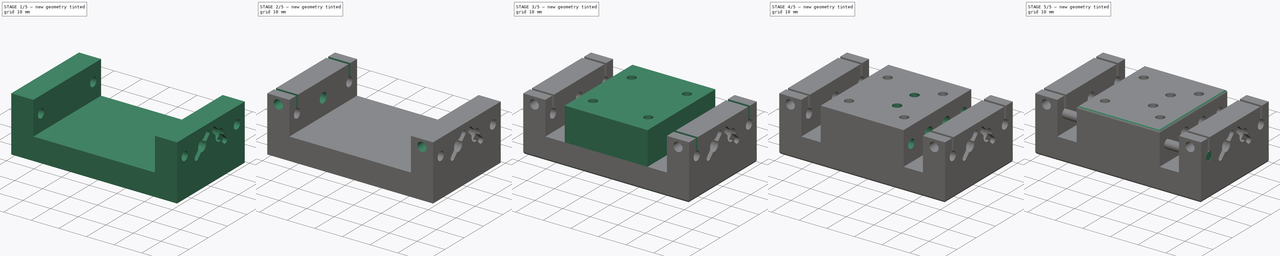
[diagram: build sequence overview — one tinted view per stage of 5, left to right]
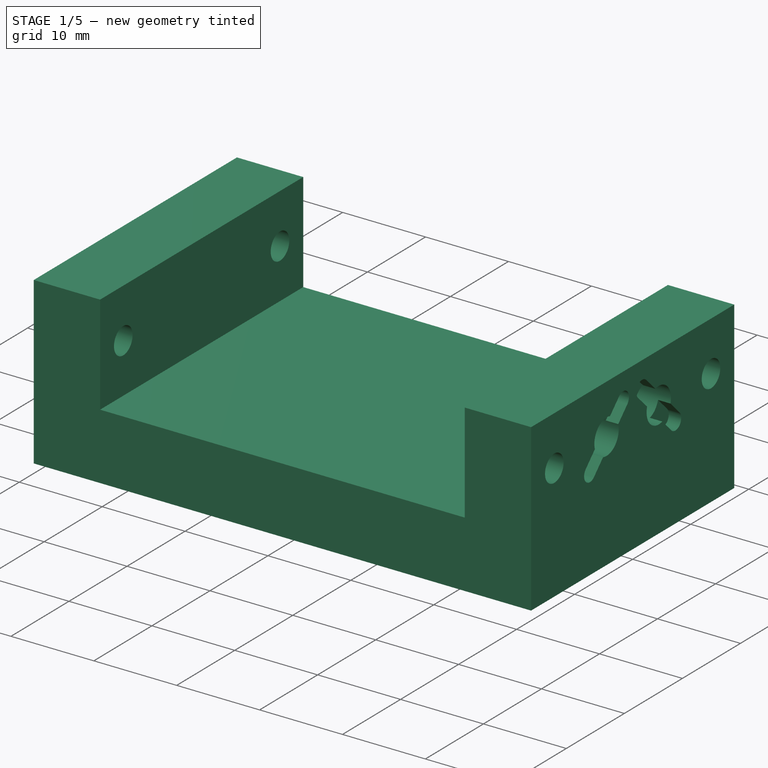
[diagram: stage 1 of 5 — iso view after this stage's code; geometry added in this stage tinted green]
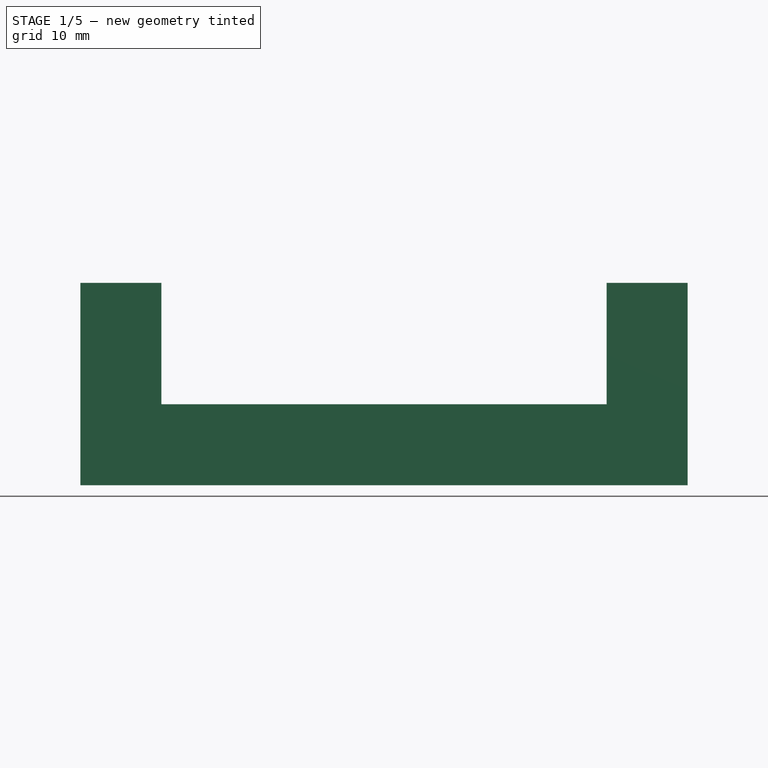
[diagram: stage 1 of 5 — front view after this stage's code; geometry added in this stage tinted green]
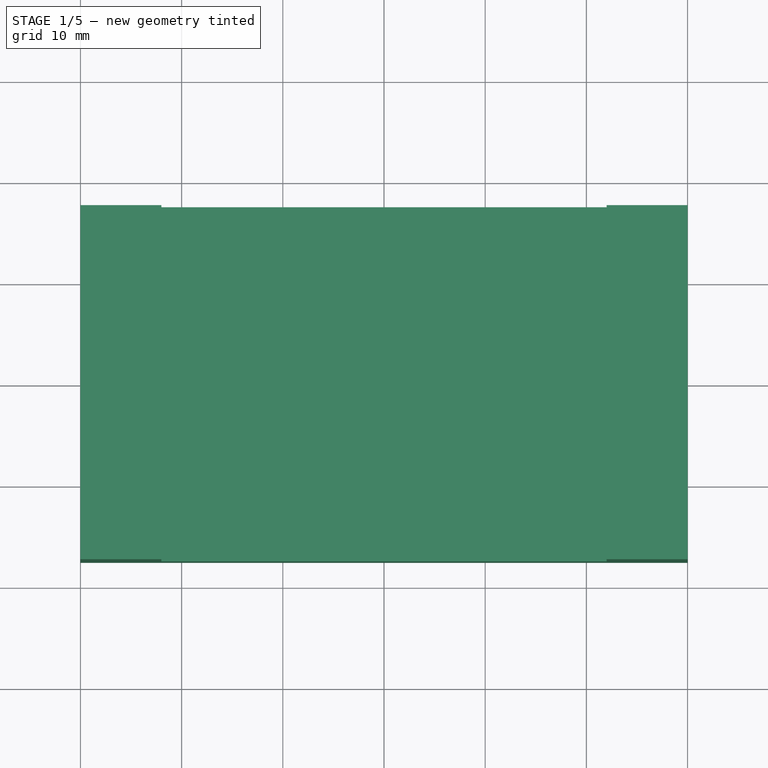
[diagram: stage 1 of 5 — top view after this stage's code; geometry added in this stage tinted green]
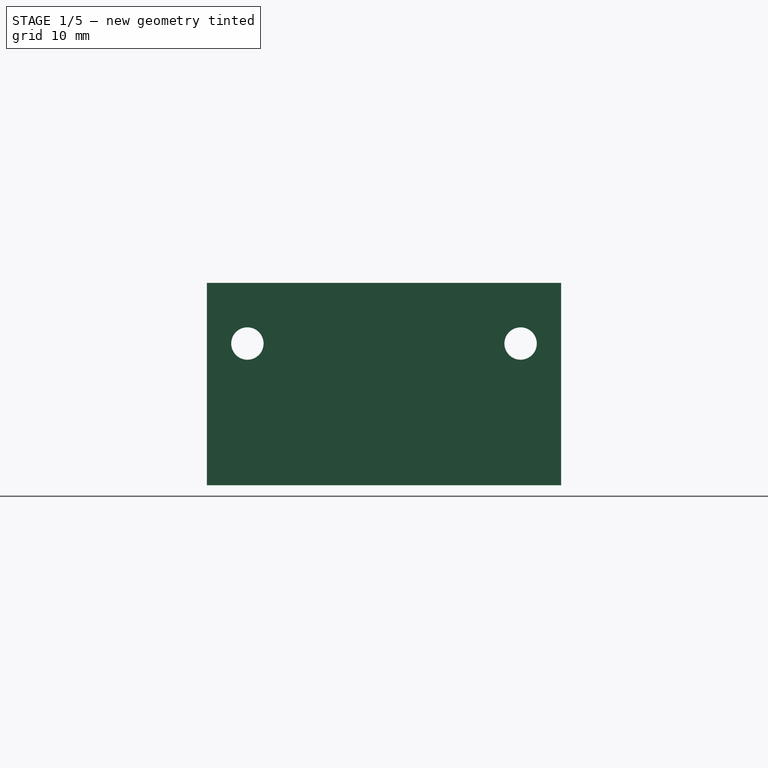
[diagram: stage 1 of 5 — right view after this stage's code; geometry added in this stage tinted green]
FCSTD DOCUMENT  (FreeCAD 0.20R29410 (Git))
Label: TranslationStage
License: All rights reserved
LicenseURL: http://en.wikipedia.org/wiki/All_rights_reserved
objects: Sketcher::SketchObject×21, PartDesign::Pocket×10, PartDesign::Plane×8, Part::Part2DObjectPython×8, PartDesign::Body×4, PartDesign::Hole×4, PartDesign::Pad×3, PartDesign::Fillet×2, Spreadsheet::Sheet×1, PartDesign::FeatureBase×1
note: 80 computed .brp shape members not serialized (recipe doc carries the construction recipe); baked Part::Feature solids carry a one-line shape summary decoded from their .brp

FEATURE [Spreadsheet::Sheet] Spreadsheet
  cells = A2=baselength; B2(baselength)==60mm; A3=basewidth; B3(basewidth)==35mm; A4=baseheight; B4(baseheight)==20mm; A5=basethickness; B5(basethickness)==8mm; A6=roddiameter; B6(roddiameter)==3mm; A7=rodseparation; B7(rodseparation)==15mm; A8=springlength; B8(springlength)==21mm; A9=springdiameter; B9(springdiameter)==4mm; A10=cagedim; B10(cagedim)==45mm; A11=rodclearance; B11(rodclearance)==0.2mm; A12=springclearance; B12(springclearance)==0.2mm; A13=stagethickness; B13(stagethickness)==12mm; A14=stagelength; B14(stagelength)==30mm; A15=stageposition; B15(stageposition)==7mm; A16=actuatorscrewdiameter; B16(actuatorscrewdiameter)==3mm
FEATURE [PartDesign::Plane] DatumPlane001
  AttachmentOffset = pos=(0,0,20) rot=(0,0,1;0rad)
  Length = 60
  MapMode = 5
  Placement = pos=(0,0,20) rot=(0,0,1;0rad)
  ResizeMode = 0
  Support = -> [XY_Plane001]
  Width = 60
  expr: .AttachmentOffset.Base.z = Spreadsheet.baseheight
FEATURE [Sketcher::SketchObject] Sketch007  label="MasterSketchRight"
  FullyConstrained = false
  Placement = pos=(0,0,0) rot=(0.57735,0.57735,0.57735;2.0944rad)
  expr: Constraints[10] = Spreadsheet.baseheight
  expr: Constraints[13] = Spreadsheet.roddiameter
  expr: Constraints[20] = Spreadsheet.basethickness / 2
  expr: Constraints[21] = Spreadsheet.basethickness + Spreadsheet.stagethickness / 2
  expr: Constraints[25] = Spreadsheet.springdiameter
  expr: Constraints[9] = Spreadsheet.basewidth
  sketch-geometry (14):
    g0: LineSegment StartX=-17.5 StartY=20 StartZ=0 EndX=-17.5 EndY=0 EndZ=0
    g1: LineSegment StartX=-17.5 StartY=0 StartZ=0 EndX=17.5 EndY=0 EndZ=0
    g2: LineSegment StartX=17.5 StartY=0 StartZ=0 EndX=17.5 EndY=20 EndZ=0
    g3: LineSegment StartX=17.5 StartY=20 StartZ=0 EndX=-17.5 EndY=20 EndZ=0
    g4: GeomPoint X=0 Y=10 Z=0
    g5: Circle CenterX=-13.5 CenterY=14 CenterZ=0 NormalX=0 NormalY=0 NormalZ=1 AngleXU=0 Radius=1.5
    g6: Circle CenterX=13.5 CenterY=14 CenterZ=0 NormalX=0 NormalY=0 NormalZ=1 AngleXU=0 Radius=1.5
    g7: LineSegment StartX=0 StartY=-8.88362 StartZ=0 EndX=8.75 EndY=-8.88362 EndZ=0
    g8: LineSegment StartX=8.75 StartY=-8.88362 StartZ=0 EndX=17.5 EndY=-8.88362 EndZ=0
    g9: Circle CenterX=-4.5 CenterY=14 CenterZ=0 NormalX=0 NormalY=0 NormalZ=1 AngleXU=0 Radius=2
    g10: Circle CenterX=4.5 CenterY=14 CenterZ=0 NormalX=0 NormalY=0 NormalZ=1 AngleXU=0 Radius=2
    g11: LineSegment StartX=13.5 StartY=14 StartZ=0 EndX=4.5 EndY=14 EndZ=0
    g12: LineSegment StartX=4.5 StartY=14 StartZ=0 EndX=-4.5 EndY=14 EndZ=0
    g13: LineSegment StartX=-4.5 StartY=14 StartZ=0 EndX=-13.5 EndY=14 EndZ=0
  constraints (36):
    c: Coincident(g0,g1)
    c: Coincident(g1,g2)
    c: Coincident(g2,g3)
    c: Coincident(g3,g0)
    c: Horizontal(g1)
    c: Horizontal(g3)
    c: Vertical(g0)
    c: Vertical(g2)
    c: Symmetric(g1,g0,g4)
    c: Distance(g1) = 35
    c: Distance(g2) = 20
    c: PointOnObject(g1,g-1)
    c: Equal(g5,g6)
    c: Diameter(g6) = 3
    c: PointOnObject(g7,g-2)
    c: Horizontal(g7)
    c: Coincident(g7,g8)
    c: Horizontal(g8)
    c: Vertical(g1,g8)
    c: Equal(g7,g8)
    c: DistanceX(g6,g1) = 4
    c: DistanceY(g0,g5) = 14
    c: PointOnObject(g4,g-2)
    c: Symmetric(g5,g6,g-2)
    c: Equal(g9,g10)
    c: Diameter(g10) = 4
    c: Coincident(g11,g6)
    c: Coincident(g11,g10)
    c: Horizontal(g11)
    c: Coincident(g11,g12)
    c: Coincident(g12,g9)
    c: Horizontal(g12)
    c: Coincident(g12,g13)
    c: Coincident(g13,g5)
    c: Equal(g13,g12)
    c: Equal(g12,g11)
FEATURE [Sketcher::SketchObject] Sketch006  label="MasterSketchFront"
  ExternalGeometry = -> [Sketch007]
  FullyConstrained = false
  Placement = pos=(0,0,0) rot=(1,0,0;1.5708rad)
  expr: Constraints[10] = Spreadsheet.baselength
  expr: Constraints[11] = Spreadsheet.baseheight
  expr: Constraints[19] = Spreadsheet.basethickness
  expr: Constraints[23] = Spreadsheet.basethickness
  expr: Constraints[25] = Spreadsheet.springlength + Spreadsheet.stageposition
  expr: Constraints[36] = Spreadsheet.stagelength
  expr: Constraints[37] = Spreadsheet.stageposition
  sketch-geometry (17):
    g0: LineSegment StartX=-30 StartY=20 StartZ=0 EndX=-30 EndY=0 EndZ=0
    g1: LineSegment StartX=-30 StartY=0 StartZ=0 EndX=30 EndY=0 EndZ=0
    g2: LineSegment StartX=30 StartY=0 StartZ=0 EndX=30 EndY=20 EndZ=0
    g3: LineSegment StartX=30 StartY=20 StartZ=0 EndX=-30 EndY=20 EndZ=0
    g4: GeomPoint X=0 Y=10 Z=0
    g5: LineSegment StartX=22 StartY=20 StartZ=0 EndX=22 EndY=0 EndZ=0
    g6: LineSegment StartX=-22 StartY=20 StartZ=0 EndX=-22 EndY=0 EndZ=0
    g7: LineSegment StartX=-30 StartY=8 StartZ=0 EndX=30 EndY=8 EndZ=0
    g8: LineSegment StartX=2 StartY=34.3091 StartZ=0 EndX=2 EndY=-10.8348 EndZ=0
    g9: LineSegment StartX=-15 StartY=20 StartZ=0 EndX=15 EndY=20 EndZ=0
    g10: LineSegment StartX=15 StartY=20 StartZ=0 EndX=15 EndY=8 EndZ=0
    g11: LineSegment StartX=15 StartY=8 StartZ=0 EndX=-15 EndY=8 EndZ=0
    g12: LineSegment StartX=-15 StartY=8 StartZ=0 EndX=-15 EndY=20 EndZ=0
    g13: LineSegment StartX=-32.7059 StartY=17.4417 StartZ=0 EndX=32.3395 EndY=17.4417 EndZ=0
    g14: Circle CenterX=26 CenterY=17.4417 CenterZ=0 NormalX=0 NormalY=0 NormalZ=1 AngleXU=0 Radius=1.5
    g15: Circle CenterX=-26 CenterY=17.4417 CenterZ=0 NormalX=0 NormalY=0 NormalZ=1 AngleXU=0 Radius=1.5
    g16: LineSegment StartX=26 StartY=20.9048 StartZ=0 EndX=26 EndY=17.2767 EndZ=0
  constraints (45):
    c: Coincident(g0,g1)
    c: Coincident(g1,g2)
    c: Coincident(g2,g3)
    c: Coincident(g3,g0)
    c: Horizontal(g1)
    c: Horizontal(g3)
    c: Vertical(g0)
    c: Vertical(g2)
    c: Symmetric(g1,g0,g4)
    c: PointOnObject(g4,g-2)
    c: Distance(g1) = 60
    c: Distance(g2) = 20
    c: PointOnObject(g1,g-1)
    c: PointOnObject(g5,g3)
    c: PointOnObject(g5,g1)
    c: Vertical(g5)
    c: PointOnObject(g6,g1)
    c: Vertical(g6)
    c: Symmetric(g6,g5,g-2)
    c: Distance(g5,g2) = 8
    c: PointOnObject(g7,g0)
    c: PointOnObject(g7,g2)
    c: Horizontal(g7)
    c: Distance(g7,g0) = 8
    c: Vertical(g8)
    c: DistanceX(g8,g1) = 28
    c: Coincident(g9,g10)
    c: Coincident(g10,g11)
    c: Coincident(g11,g12)
    c: Coincident(g12,g9)
    c: Horizontal(g9)
    c: Horizontal(g11)
    c: Vertical(g10)
    c: Vertical(g12)
    c: PointOnObject(g9,g3)
    c: PointOnObject(g10,g7)
    c: Distance(g9) = 30
    c: DistanceX(g9,g5) = 7
    c: Horizontal(g13)
    c: PointOnObject(g14,g13)
    c: Diameter(g14) = 3
    c: Equal(g14,g15)
    c: Symmetric(g15,g14,g-2)
    c: Symmetric(g5,g2,g16)
    c: PointOnObject(g14,g16)
FEATURE [Sketcher::SketchObject] Sketch008  label="MasterSketchTop"
  ExternalGeometry = -> [Sketch006]
  FullyConstrained = true
  expr: Constraints[10] = Spreadsheet.baselength
  expr: Constraints[11] = Spreadsheet.basewidth
  expr: Constraints[22] = Spreadsheet.cagedim
  expr: Constraints[42] = Spreadsheet.stagelength
  sketch-geometry (18):
    g0: LineSegment StartX=-30 StartY=17.5 StartZ=0 EndX=-30 EndY=-17.5 EndZ=0
    g1: LineSegment StartX=-30 StartY=-17.5 StartZ=0 EndX=30 EndY=-17.5 EndZ=0
    g2: LineSegment StartX=30 StartY=-17.5 StartZ=0 EndX=30 EndY=17.5 EndZ=0
    g3: LineSegment StartX=30 StartY=17.5 StartZ=0 EndX=-30 EndY=17.5 EndZ=0
    g4: GeomPoint X=0 Y=0 Z=0
    g5: LineSegment StartX=22.5 StartY=22.5 StartZ=0 EndX=22.5 EndY=-22.5 EndZ=0
    g6: LineSegment StartX=22.5 StartY=-22.5 StartZ=0 EndX=-22.5 EndY=-22.5 EndZ=0
    g7: LineSegment StartX=-22.5 StartY=-22.5 StartZ=0 EndX=-22.5 EndY=22.5 EndZ=0
    g8: LineSegment StartX=-22.5 StartY=22.5 StartZ=0 EndX=22.5 EndY=22.5 EndZ=0
    g9: GeomPoint X=0 Y=0 Z=0
    g10: Circle CenterX=-22.5 CenterY=22.5 CenterZ=0 NormalX=0 NormalY=0 NormalZ=1 AngleXU=0 Radius=3
    g11: Circle CenterX=22.5 CenterY=22.5 CenterZ=0 NormalX=0 NormalY=0 NormalZ=1 AngleXU=0 Radius=3
    g12: Circle CenterX=-22.5 CenterY=-22.5 CenterZ=0 NormalX=0 NormalY=0 NormalZ=1 AngleXU=0 Radius=3
    g13: Circle CenterX=22.5 CenterY=-22.5 CenterZ=0 NormalX=0 NormalY=0 NormalZ=1 AngleXU=0 Radius=3
    g14: LineSegment StartX=-15 StartY=17.5 StartZ=0 EndX=15 EndY=17.5 EndZ=0
    g15: LineSegment StartX=15 StartY=17.5 StartZ=0 EndX=15 EndY=-17.5 EndZ=0
    g16: LineSegment StartX=15 StartY=-17.5 StartZ=0 EndX=-15 EndY=-17.5 EndZ=0
    g17: LineSegment StartX=-15 StartY=-17.5 StartZ=0 EndX=-15 EndY=17.5 EndZ=0
  constraints (44):
    c: Coincident(g0,g1)
    c: Coincident(g1,g2)
    c: Coincident(g2,g3)
    c: Coincident(g3,g0)
    c: Horizontal(g1)
    c: Horizontal(g3)
    c: Vertical(g0)
    c: Vertical(g2)
    c: Symmetric(g1,g0,g4)
    c: Coincident(g4,g-1)
    c: Distance(g1) = 60
    c: Distance(g2) = 35
    c: Coincident(g5,g6)
    c: Coincident(g6,g7)
    c: Coincident(g7,g8)
    c: Coincident(g8,g5)
    c: Horizontal(g6)
    c: Horizontal(g8)
    c: Vertical(g5)
    c: Vertical(g7)
    c: Symmetric(g6,g5,g9)
    c: Coincident(g9,g4)
    c: Distance(g8) = 45
    c: Equal(g8,g5)
    c: Coincident(g10,g7)
    c: Coincident(g11,g5)
    c: Coincident(g12,g6)
    c: Coincident(g13,g5)
    c: Equal(g10,g11)
    c: Equal(g11,g12)
    c: Equal(g12,g13)
    c: Diameter(g11) = 6
    c: Coincident(g14,g15)
    c: Coincident(g15,g16)
    c: Coincident(g16,g17)
    c: Coincident(g17,g14)
    c: Horizontal(g14)
    c: Horizontal(g16)
    c: Vertical(g15)
    c: Vertical(g17)
    c: PointOnObject(g14,g3)
    c: PointOnObject(g15,g1)
    c: DistanceX(g14,g14) = 30
    c: PointOnObject(g-3,g15)
FEATURE [Part::Part2DObjectPython] Clone2D  label="MasterSketchFront (2D)"  # Draft 2D object (typed FeaturePython)
  Fuse = false
  Objects = -> [Sketch006]
  Placement = pos=(0,0,0) rot=(1,0,0;1.5708rad)
  Scale = (1,1,1)
FEATURE [Sketcher::SketchObject] Sketch
  ExternalGeometry = -> [Clone2D]
  FullyConstrained = true
  MapMode = 5
  Placement = pos=(0,0,0) rot=(1,0,0;1.5708rad)
  Support = -> [XZ_Plane]
  sketch-geometry (8):
    g0: LineSegment StartX=-30 StartY=20 StartZ=0 EndX=-30 EndY=0 EndZ=0
    g1: LineSegment StartX=-30 StartY=0 StartZ=0 EndX=30 EndY=0 EndZ=0
    g2: LineSegment StartX=30 StartY=0 StartZ=0 EndX=30 EndY=20 EndZ=0
    g3: LineSegment StartX=30 StartY=20 StartZ=0 EndX=22 EndY=20 EndZ=0
    g4: LineSegment StartX=22 StartY=20 StartZ=0 EndX=22 EndY=8 EndZ=0
    g5: LineSegment StartX=22 StartY=8 StartZ=0 EndX=-22 EndY=8 EndZ=0
    g6: LineSegment StartX=-22 StartY=8 StartZ=0 EndX=-22 EndY=20 EndZ=0
    g7: LineSegment StartX=-22 StartY=20 StartZ=0 EndX=-30 EndY=20 EndZ=0
  constraints (20):
    c: Vertical(g0)
    c: Coincident(g0,g1)
    c: Coincident(g1,g2)
    c: Vertical(g2)
    c: Coincident(g2,g3)
    c: Horizontal(g3)
    c: Coincident(g3,g4)
    c: Vertical(g4)
    c: Coincident(g4,g5)
    c: Coincident(g5,g6)
    c: Vertical(g6)
    c: Coincident(g6,g7)
    c: Coincident(g7,g0)
    c: Symmetric(g0,g1,g-2)
    c: Symmetric(g5,g4,g-2)
    c: PointOnObject(g1,g-1)
    c: Horizontal(g6,g3)
    c: Coincident(g0,g-3)
    c: Coincident(g6,g-4)
    c: Horizontal(g5,g-5)
FEATURE [PartDesign::Pad] Pad
  Direction = (0,-1,-2e-16)
  Length = 35
  Length2 = 10
  Midplane = true
  Placement = pos=(0,0,0) rot=(1,0,0;1.5708rad)
  Profile = -> Sketch
  ReferenceAxis = -> Sketch [N_Axis]
  Refine = true
  Type = 0
  expr: Length = Spreadsheet.basewidth
FEATURE [Part::Part2DObjectPython] Clone2D001  label="MasterSketchRight (2D)"  # Draft 2D object (typed FeaturePython)
  Fuse = false
  Objects = -> [Sketch007]
  Placement = pos=(0,0,0) rot=(0.57735,0.57735,0.57735;2.0944rad)
  Scale = (1,1,1)
FEATURE [Sketcher::SketchObject] Sketch001
  ExternalGeometry = -> [Clone2D001]
  FullyConstrained = true
  MapMode = 5
  Placement = pos=(0,0,0) rot=(0.57735,0.57735,0.57735;2.0944rad)
  Support = -> [YZ_Plane]
  expr: Constraints[10] = Spreadsheet.baseheight
  expr: Constraints[12] = Spreadsheet.roddiameter + Spreadsheet.rodclearance
  expr: Constraints[14] = Spreadsheet.roddiameter + Spreadsheet.rodclearance
  expr: Constraints[9] = Spreadsheet.basewidth
  sketch-geometry (6):
    g0: LineSegment StartX=-17.5 StartY=20 StartZ=0 EndX=17.5 EndY=20 EndZ=0
    g1: LineSegment StartX=17.5 StartY=20 StartZ=0 EndX=17.5 EndY=0 EndZ=0
    g2: LineSegment StartX=17.5 StartY=0 StartZ=0 EndX=-17.5 EndY=0 EndZ=0
    g3: LineSegment StartX=-17.5 StartY=0 StartZ=0 EndX=-17.5 EndY=20 EndZ=0
    g4: Circle CenterX=-13.5 CenterY=14 CenterZ=0 NormalX=0 NormalY=0 NormalZ=1 AngleXU=0 Radius=1.6
    g5: Circle CenterX=13.5 CenterY=14 CenterZ=0 NormalX=0 NormalY=0 NormalZ=1 AngleXU=0 Radius=1.6
  constraints (15):
    c: Coincident(g0,g1)
    c: Coincident(g1,g2)
    c: Coincident(g2,g3)
    c: Coincident(g3,g0)
    c: Horizontal(g0)
    c: Vertical(g1)
    c: Vertical(g3)
    c: PointOnObject(g1,g-1)
    c: Symmetric(g2,g1,g-2)
    c: Distance(g0) = 35
    c: Distance(g1) = 20
    c: Coincident(g4,g-6)
    c: Diameter(g4) = 3.2
    c: Coincident(g5,g-3)
    c: Diameter(g5) = 3.2
FEATURE [PartDesign::Pocket] Pocket  label="RodsPocket"
  BaseFeature = -> Pad
  Direction = (-1,2e-16,-3e-16)
  Length = 5
  Length2 = 5
  Midplane = true
  Placement = pos=(0,0,0) rot=(1,0,0;1.5708rad)
  Profile = -> Sketch001
  ReferenceAxis = -> Sketch001 [N_Axis]
  Refine = true
  Type = 1
FEATURE [PartDesign::Body] Body003  label="Rod2Body"
  BaseFeature = -> Body002
  Group = -> [Clone]
  Origin = -> Origin003
  Tip = -> Clone
FEATURE [PartDesign::Plane] DatumPlane
  AttachmentOffset = pos=(0,0,30) rot=(0,0,1;0rad)
  Length = 60
  MapMode = 5
  Placement = pos=(30,-6.7e-15,6.7e-15) rot=(0.57735,0.57735,0.57735;2.0944rad)
  ResizeMode = 0
  Support = -> [YZ_Plane]
  Width = 60
  expr: .AttachmentOffset.Base.z = Spreadsheet.baselength / 2
FEATURE [Sketcher::SketchObject] Sketch009
  ExternalGeometry = -> [Clone2D001]
  FullyConstrained = true
  MapMode = 5
  Placement = pos=(30,-6.7e-15,6.7e-15) rot=(0.57735,0.57735,0.57735;2.0944rad)
  Support = -> [DatumPlane]
  expr: Constraints[0] = Spreadsheet.springdiameter + Spreadsheet.springclearance
  sketch-geometry (2):
    g0: Circle CenterX=-4.5 CenterY=14 CenterZ=0 NormalX=0 NormalY=0 NormalZ=1 AngleXU=0 Radius=2.1
    g1: Circle CenterX=4.5 CenterY=14 CenterZ=0 NormalX=0 NormalY=0 NormalZ=1 AngleXU=0 Radius=2.1
  constraints (4):
    c: Diameter(g0) = 4.2
    c: Equal(g0,g1)
    c: Coincident(g0,g-4)
    c: Coincident(g1,g-5)
FEATURE [PartDesign::Pocket] Pocket002  label="SpringPocket"
  BaseFeature = -> Pocket
  Direction = (-1,1e-16,-1e-16)
  Length = 10
  Length2 = 5
  Placement = pos=(0,0,0) rot=(1,0,0;1.5708rad)
  Profile = -> Sketch009
  ReferenceAxis = -> Sketch009 [N_Axis]
  Refine = true
  Type = 0
FEATURE [Sketcher::SketchObject] Sketch013
  ExternalGeometry = -> [Clone2D001]
  FullyConstrained = true
  MapMode = 5
  Placement = pos=(30,-6.7e-15,6.7e-15) rot=(0.57735,0.57735,0.57735;2.0944rad)
  Support = -> [DatumPlane]
  sketch-geometry (10):
    g0: ArcOfCircle CenterX=-1.63622 CenterY=16.8638 CenterZ=0 NormalX=0 NormalY=0 NormalZ=1 AngleXU=0 Radius=1 StartAngle=5.49779 EndAngle=8.63938
    g1: ArcOfCircle CenterX=-7.36378 CenterY=11.1362 CenterZ=0 NormalX=0 NormalY=0 NormalZ=1 AngleXU=0 Radius=1 StartAngle=2.35619 EndAngle=5.49779
    g2: LineSegment StartX=-2.34332 StartY=17.5709 StartZ=0 EndX=-8.07089 EndY=11.8433 EndZ=0
    g3: LineSegment StartX=-6.65668 StartY=10.4291 StartZ=0 EndX=-0.929111 EndY=16.1567 EndZ=0
    g4: ArcOfCircle CenterX=1.63622 CenterY=16.8638 CenterZ=0 NormalX=0 NormalY=0 NormalZ=1 AngleXU=0 Radius=1 StartAngle=0.785398 EndAngle=3.92699
    g5: ArcOfCircle CenterX=7.36378 CenterY=11.1362 CenterZ=0 NormalX=0 NormalY=0 NormalZ=1 AngleXU=0 Radius=1 StartAngle=3.92699 EndAngle=7.06858
    g6: LineSegment StartX=0.929111 StartY=16.1567 StartZ=0 EndX=6.65668 EndY=10.4291 EndZ=0
    g7: LineSegment StartX=8.07089 StartY=11.8433 StartZ=0 EndX=2.34332 EndY=17.5709 EndZ=0
    g8: LineSegment StartX=-1.63622 StartY=16.8638 StartZ=0 EndX=-7.36378 EndY=11.1362 EndZ=0
    g9: LineSegment StartX=1.63622 StartY=16.8638 StartZ=0 EndX=7.36378 EndY=11.1362 EndZ=0
  constraints (22):
    c: Tangent(g0,g2) = -1.5708
    c: Tangent(g2,g1) = -1.5708
    c: Tangent(g1,g3) = -1.5708
    c: Tangent(g3,g0) = -1.5708
    c: Equal(g0,g1)
    c: Distance(g0,g1) = 8.1
    c: Radius(g0) = 1
    c: Symmetric(g0,g1,g-3)
    c: Tangent(g4,g6) = -1.5708
    c: Tangent(g6,g5) = -1.5708
    c: Tangent(g5,g7) = -1.5708
    c: Tangent(g7,g4) = -1.5708
    c: Equal(g4,g5)
    c: Coincident(g8,g0)
    c: Coincident(g8,g1)
    c: Coincident(g9,g4)
    c: Coincident(g9,g5)
    c: Equal(g8,g9)
    c: Equal(g0,g4)
    c: PointOnObject(g-4,g9)
    c: Angle(g8,g9) = 1.5708
    c: Symmetric(g0,g4,g-2)
FEATURE [PartDesign::Pocket] Pocket006  label="SpringPinPocket"
  BaseFeature = -> Pocket002
  Direction = (-1,1e-16,-1e-16)
  Length = 1.5
  Length2 = 5
  Placement = pos=(0,0,0) rot=(1,0,0;1.5708rad)
  Profile = -> Sketch013
  ReferenceAxis = -> Sketch013 [N_Axis]
  Refine = true
  Type = 0
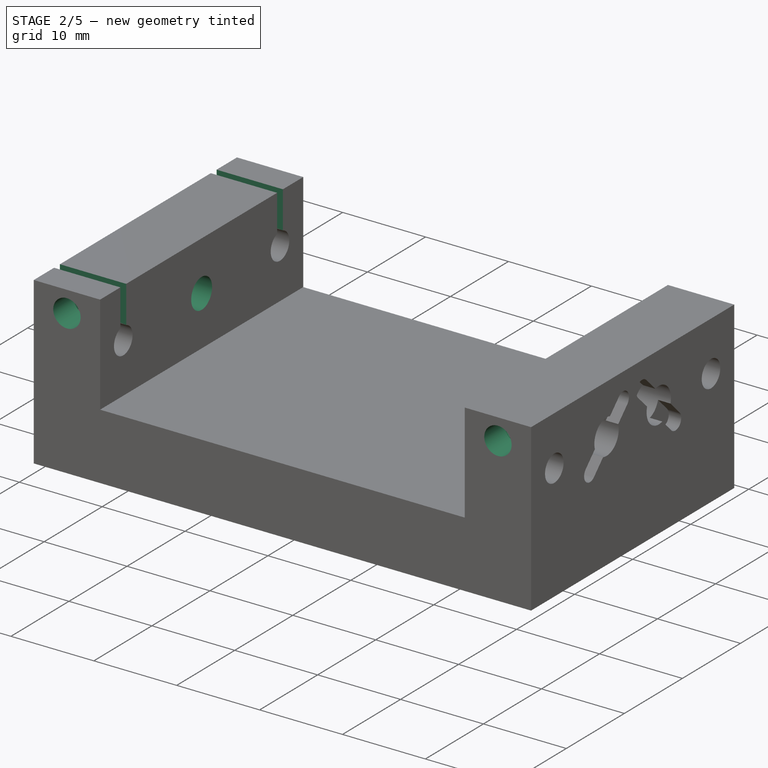
[diagram: stage 2 of 5 — iso view after this stage's code; geometry added in this stage tinted green]
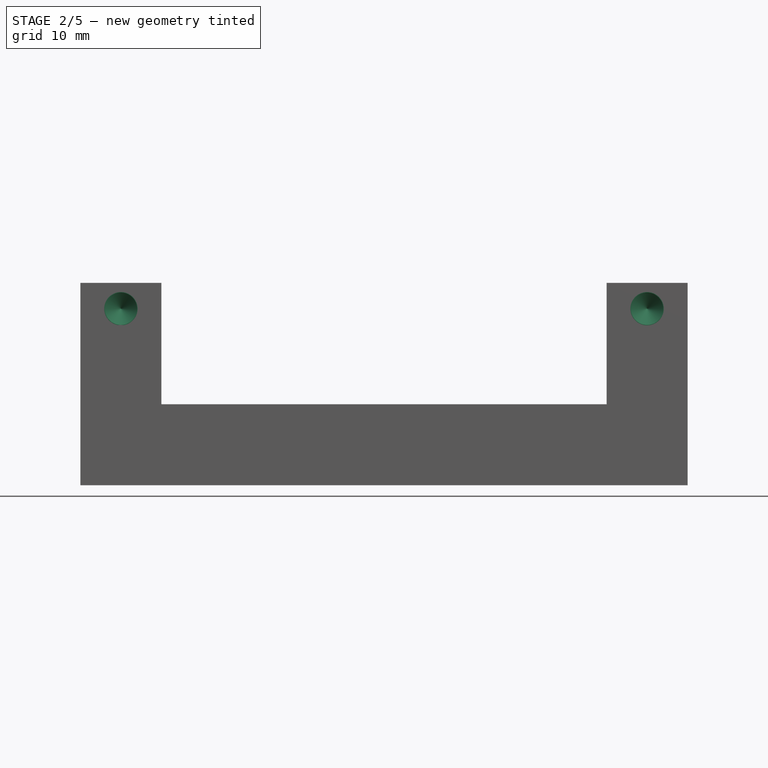
[diagram: stage 2 of 5 — front view after this stage's code; geometry added in this stage tinted green]
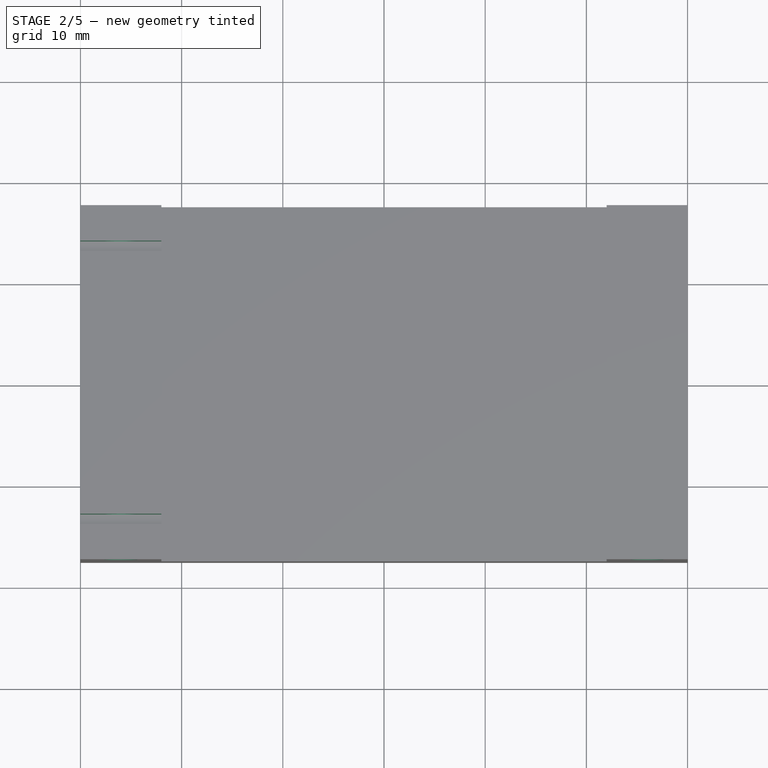
[diagram: stage 2 of 5 — top view after this stage's code; geometry added in this stage tinted green]
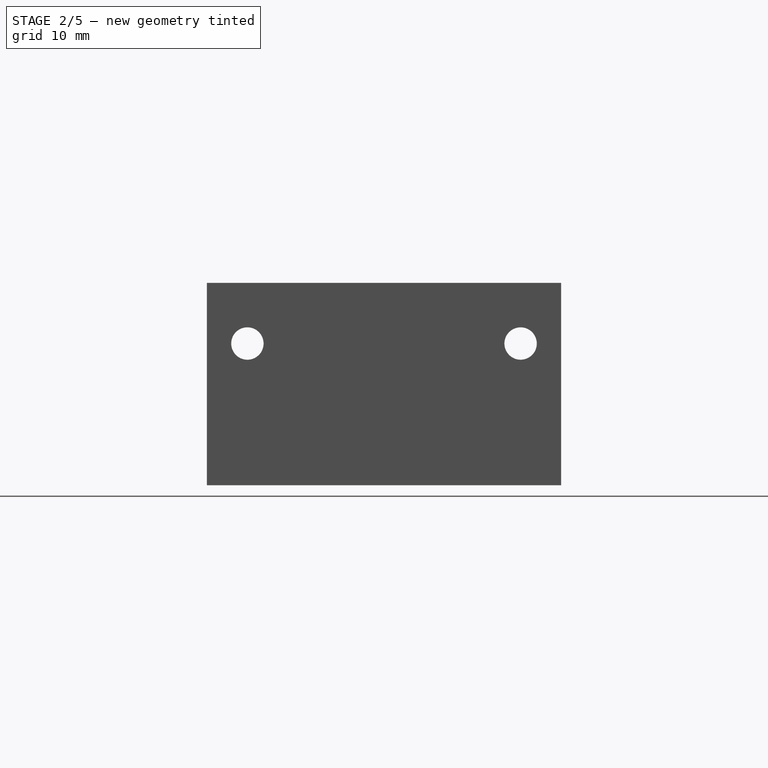
[diagram: stage 2 of 5 — right view after this stage's code; geometry added in this stage tinted green]
FEATURE [PartDesign::Plane] DatumPlane003
  AttachmentOffset = pos=(0,0,-30) rot=(0,0,1;0rad)
  Length = 60
  MapMode = 5
  Placement = pos=(-30,6.7e-15,-6.7e-15) rot=(0.57735,0.57735,0.57735;2.0944rad)
  ResizeMode = 0
  Support = -> [YZ_Plane]
  Width = 60
  expr: .AttachmentOffset.Base.z = -Spreadsheet.baselength / 2
FEATURE [Sketcher::SketchObject] Sketch014
  ExternalGeometry = -> [Clone2D]
  FullyConstrained = true
  MapMode = 5
  Placement = pos=(-30,6.7e-15,-6.7e-15) rot=(0.57735,0.57735,0.57735;2.0944rad)
  Support = -> [DatumPlane003]
  expr: Constraints[1] = Spreadsheet.actuatorscrewdiameter
  sketch-geometry (2):
    g0: Circle CenterX=-8e-15 CenterY=14 CenterZ=0 NormalX=0 NormalY=0 NormalZ=1 AngleXU=0 Radius=1.5
    g1: Circle CenterX=-8e-15 CenterY=14 CenterZ=0 NormalX=0 NormalY=0 NormalZ=1 AngleXU=0 Radius=3.5
  constraints (4):
    c: Symmetric(g-4,g-3,g0)
    c: Diameter(g0) = 3
    c: Coincident(g1,g0)
    c: Diameter(g1) = 7
FEATURE [PartDesign::Hole] Hole
  BaseFeature = -> Pocket006
  CustomThreadClearance = 0
  Depth = 10
  DepthType = 0
  Diameter = 3.6
  DrillForDepth = false
  DrillPoint = 0
  DrillPointAngle = 118
  HoleCutCountersinkAngle = 90
  HoleCutCustomValues = false
  HoleCutDepth = 3.4
  HoleCutDiameter = 7.4
  HoleCutType = 0
  ModelThread = false
  Placement = pos=(0,0,0) rot=(1,0,0;1.5708rad)
  Profile = -> Sketch014
  Refine = true
  Reversed = true
  Tapered = false
  TaperedAngle = 90
  ThreadClass = 0
  ThreadDepth = 10
  ThreadDepthType = 0
  ThreadDirection = 0
  ThreadFit = 2
  ThreadSize = 9
  ThreadType = 1
  Threaded = false
  UseCustomThreadClearance = false
FEATURE [Sketcher::SketchObject] Sketch017  label="MasterSketchFlexClamp"
  ExternalGeometry = -> [Sketch007]
  FullyConstrained = false
  Placement = pos=(0,0,0) rot=(0.57735,0.57735,0.57735;2.0944rad)
  expr: Constraints[12] = Spreadsheet.basethickness - 1mm
  sketch-geometry (19):
    g0: LineSegment StartX=-14 StartY=14 StartZ=0 EndX=-13.5 EndY=14 EndZ=0
    g1: LineSegment StartX=-13.5 StartY=14 StartZ=0 EndX=-13 EndY=14 EndZ=0
    g2: LineSegment StartX=13 StartY=14 StartZ=0 EndX=13.5 EndY=14 EndZ=0
    g3: LineSegment StartX=13.5 StartY=14 StartZ=0 EndX=14 EndY=14 EndZ=0
    g4: LineSegment StartX=-19.2606 StartY=7 StartZ=0 EndX=19.5384 EndY=7 EndZ=0
    g5: LineSegment StartX=-13 StartY=14 StartZ=0 EndX=-13 EndY=8 EndZ=0
    g6: ArcOfCircle CenterX=-14 CenterY=8 CenterZ=0 NormalX=0 NormalY=0 NormalZ=1 AngleXU=0 Radius=1 StartAngle=4.71239 EndAngle=6.28319
    g7: LineSegment StartX=-14 StartY=7 StartZ=0 EndX=-17.5 EndY=7 EndZ=0
    g8: LineSegment StartX=-17.5 StartY=7 StartZ=0 EndX=-17.5 EndY=8 EndZ=0
    g9: LineSegment StartX=-17.5 StartY=8 StartZ=0 EndX=-14 EndY=8 EndZ=0
    g10: LineSegment StartX=-14 StartY=8 StartZ=0 EndX=-14 EndY=14 EndZ=0
    g11: LineSegment StartX=-14 StartY=14 StartZ=0 EndX=-13 EndY=14 EndZ=0
    g12: LineSegment StartX=13 StartY=14 StartZ=0 EndX=13 EndY=8 EndZ=0
    g13: ArcOfCircle CenterX=14 CenterY=8 CenterZ=0 NormalX=0 NormalY=0 NormalZ=1 AngleXU=0 Radius=1 StartAngle=3.14159 EndAngle=4.71239
    g14: LineSegment StartX=14 StartY=7 StartZ=0 EndX=17.5 EndY=7 EndZ=0
    g15: LineSegment StartX=17.5 StartY=7 StartZ=0 EndX=17.5 EndY=8 EndZ=0
    g16: LineSegment StartX=17.5 StartY=8 StartZ=0 EndX=14 EndY=8 EndZ=0
    g17: LineSegment StartX=14 StartY=8 StartZ=0 EndX=14 EndY=14 EndZ=0
    g18: LineSegment StartX=13 StartY=14 StartZ=0 EndX=14 EndY=14 EndZ=0
  constraints (49):
    c: Coincident(g0,g-3)
    c: Horizontal(g0)
    c: Coincident(g1,g0)
    c: Horizontal(g1)
    c: Equal(g0,g1)
    c: Coincident(g2,g-4)
    c: Horizontal(g2)
    c: Coincident(g2,g3)
    c: Horizontal(g3)
    c: Equal(g2,g3)
    c: Equal(g2,g0)
    c: Horizontal(g4)
    c: DistanceY(g-1,g4) = 7
    c: DistanceX(g0,g1) = 1
    c: Coincident(g1,g5)
    c: Vertical(g5)
    c: Tangent(g5,g6) = 1.5708
    c: PointOnObject(g6,g4)
    c: Coincident(g6,g7)
    c: PointOnObject(g7,g-5)
    c: Horizontal(g7)
    c: Coincident(g7,g8)
    c: PointOnObject(g8,g-5)
    c: Coincident(g8,g9)
    c: Horizontal(g9)
    c: Coincident(g9,g10)
    c: Coincident(g10,g0)
    c: Vertical(g10)
    c: Coincident(g10,g11)
    c: Coincident(g11,g5)
    c: Coincident(g2,g12)
    c: Tangent(g12,g13) = -1.5708
    c: Coincident(g13,g14)
    c: PointOnObject(g14,g-6)
    c: Horizontal(g14)
    c: Coincident(g14,g15)
    c: PointOnObject(g15,g-6)
    c: Coincident(g15,g16)
    c: Horizontal(g16)
    c: Coincident(g16,g17)
    c: Coincident(g17,g3)
    c: Vertical(g17)
    c: DistanceY(g7,g8) = 1
    c: Vertical(g9,g6)
    c: Symmetric(g5,g12,g-2)
    c: Symmetric(g6,g13,g-2)
    c: Symmetric(g16,g6,g-2)
    c: Coincident(g18,g12)
    c: Coincident(g18,g17)
FEATURE [Part::Part2DObjectPython] Clone2D006  label="MasterSketchFlexClamp (2D)"  # Draft 2D object (typed FeaturePython)
  Fuse = false
  Objects = -> [Sketch017]
  Placement = pos=(0,0,0) rot=(0.57735,0.57735,0.57735;2.0944rad)
  Scale = (1,1,1)
FEATURE [Part::Part2DObjectPython] Clone2D007  label="MasterSketchFlexClamp (2D)001"  # Draft 2D object (typed FeaturePython)
  Fuse = false
  Objects = -> [Sketch017]
  Placement = pos=(0,0,0) rot=(0.57735,0.57735,0.57735;2.0944rad)
  Scale = (1,1,1)
FEATURE [Sketcher::SketchObject] Sketch019
  ExternalGeometry = -> [Clone2D007]
  FullyConstrained = false
  MapMode = 5
  Placement = pos=(30,-6.7e-15,6.7e-15) rot=(0.57735,0.57735,0.57735;2.0944rad)
  Support = -> [DatumPlane]
  sketch-geometry (8):
    g0: LineSegment StartX=-13 StartY=14 StartZ=0 EndX=-14 EndY=14 EndZ=0
    g1: LineSegment StartX=-14 StartY=14 StartZ=0 EndX=-14 EndY=27.0383 EndZ=0
    g2: LineSegment StartX=-14 StartY=27.0383 StartZ=0 EndX=-13 EndY=27.0383 EndZ=0
    g3: LineSegment StartX=-13 StartY=27.0383 StartZ=0 EndX=-13 EndY=14 EndZ=0
    g4: LineSegment StartX=13 StartY=14 StartZ=0 EndX=13 EndY=26.9831 EndZ=0
    g5: LineSegment StartX=13 StartY=26.9831 StartZ=0 EndX=14 EndY=26.9831 EndZ=0
    g6: LineSegment StartX=14 StartY=26.9831 StartZ=0 EndX=14 EndY=14 EndZ=0
    g7: LineSegment StartX=14 StartY=14 StartZ=0 EndX=13 EndY=14 EndZ=0
  constraints (18):
    c: Coincident(g-3,g0)
    c: Coincident(g0,g-3)
    c: Coincident(g0,g1)
    c: Vertical(g1)
    c: Coincident(g1,g2)
    c: Horizontal(g2)
    c: Coincident(g2,g3)
    c: Coincident(g3,g0)
    c: Vertical(g3)
    c: Coincident(g-4,g4)
    c: Vertical(g4)
    c: Coincident(g4,g5)
    c: Horizontal(g5)
    c: Coincident(g5,g6)
    c: Coincident(g6,g-4)
    c: Vertical(g6)
    c: Coincident(g6,g7)
    c: Coincident(g7,g4)
FEATURE [Sketcher::SketchObject] Sketch018
  ExternalGeometry = -> [Sketch019,Clone2D007]
  FullyConstrained = false
  MapMode = 5
  Placement = pos=(-30,6.7e-15,-6.7e-15) rot=(0.57735,0.57735,0.57735;2.0944rad)
  Support = -> [DatumPlane003]
  sketch-geometry (8):
    g0: LineSegment StartX=-14 StartY=14 StartZ=0 EndX=-14 EndY=21.2409 EndZ=0
    g1: LineSegment StartX=-14 StartY=21.2409 StartZ=0 EndX=-13 EndY=21.2409 EndZ=0
    g2: LineSegment StartX=-13 StartY=21.2409 StartZ=0 EndX=-13 EndY=14 EndZ=0
    g3: LineSegment StartX=13 StartY=14 StartZ=0 EndX=13 EndY=22.0674 EndZ=0
    g4: LineSegment StartX=13 StartY=22.0674 StartZ=0 EndX=14 EndY=22.0674 EndZ=0
    g5: LineSegment StartX=14 StartY=22.0674 StartZ=0 EndX=14 EndY=14 EndZ=0
    g6: LineSegment StartX=13 StartY=14 StartZ=0 EndX=14 EndY=14 EndZ=0
    g7: LineSegment StartX=-14 StartY=14 StartZ=0 EndX=-13 EndY=14 EndZ=0
  constraints (14):
    c: Vertical(g0)
    c: Coincident(g0,g1)
    c: Horizontal(g1)
    c: Coincident(g1,g2)
    c: Vertical(g2)
    c: Vertical(g3)
    c: Coincident(g3,g4)
    c: Horizontal(g4)
    c: Coincident(g4,g5)
    c: Vertical(g5)
    c: Coincident(g6,g3)
    c: Coincident(g6,g5)
    c: Coincident(g7,g0)
    c: Coincident(g7,g2)
FEATURE [PartDesign::Plane] DatumPlane006
  AttachmentOffset = pos=(0,0,17.5) rot=(0,0,1;0rad)
  Length = 70.9545
  MapMode = 5
  Placement = pos=(0,-17.5,-3.9e-15) rot=(1,0,0;1.5708rad)
  ResizeMode = 0
  Support = -> [XZ_Plane]
  Width = 60.9545
  expr: .AttachmentOffset.Base.z = Spreadsheet.basewidth / 2
FEATURE [Sketcher::SketchObject] Sketch020
  ExternalGeometry = -> [Clone2D]
  FullyConstrained = true
  MapMode = 5
  Placement = pos=(0,-17.5,-3.9e-15) rot=(1,0,0;1.5708rad)
  Support = -> [DatumPlane006]
  sketch-geometry (2):
    g0: Circle CenterX=26 CenterY=17.4417 CenterZ=0 NormalX=0 NormalY=0 NormalZ=1 AngleXU=0 Radius=1.5
    g1: Circle CenterX=-26 CenterY=17.4417 CenterZ=0 NormalX=0 NormalY=0 NormalZ=1 AngleXU=0 Radius=1.5
  constraints (4):
    c: Coincident(g0,g-3)
    c: Coincident(g1,g-4)
    c: Equal(g1,g0)
    c: Equal(g0,g-3)
FEATURE [PartDesign::Hole] Hole001
  BaseFeature = -> Hole
  CustomThreadClearance = 0
  Depth = 9
  DepthType = 0
  Diameter = 3.2
  DrillForDepth = false
  DrillPoint = 1
  DrillPointAngle = 118
  HoleCutCountersinkAngle = 90
  HoleCutCustomValues = false
  HoleCutDepth = 3.5
  HoleCutDiameter = 3.3
  HoleCutType = 1
  ModelThread = false
  Placement = pos=(0,0,0) rot=(1,0,0;1.5708rad)
  Profile = -> Sketch020
  Refine = true
  Tapered = false
  TaperedAngle = 90
  ThreadClass = 0
  ThreadDepth = 9
  ThreadDepthType = 0
  ThreadDirection = 0
  ThreadFit = 1
  ThreadSize = 9
  ThreadType = 1
  Threaded = false
  UseCustomThreadClearance = false
  expr: HoleCutDiameter = 3.3mm
FEATURE [PartDesign::Plane] DatumPlane007
  AttachmentOffset = pos=(0,0,17.5) rot=(0,0,1;0rad)
  Length = 70.9545
  MapMode = 5
  Placement = pos=(0,17.5,3.9e-15) rot=(0,0.707107,0.707107;3.14159rad)
  ResizeMode = 0
  Support = -> [XZ_Plane]
  Width = 60.9545
  expr: .AttachmentOffset.Base.z = Spreadsheet.basewidth / 2
FEATURE [Sketcher::SketchObject] Sketch021
  ExternalGeometry = -> [Clone2D]
  FullyConstrained = true
  MapMode = 5
  Placement = pos=(0,17.5,3.9e-15) rot=(0,0.707107,0.707107;3.14159rad)
  Support = -> [DatumPlane007]
  sketch-geometry (2):
    g0: Circle CenterX=-26 CenterY=17.4417 CenterZ=0 NormalX=0 NormalY=0 NormalZ=1 AngleXU=0 Radius=1.5
    g1: Circle CenterX=26 CenterY=17.4417 CenterZ=0 NormalX=0 NormalY=0 NormalZ=1 AngleXU=0 Radius=1.5
  constraints (4):
    c: Coincident(g0,g-3)
    c: Coincident(g1,g-4)
    c: Equal(g0,g1)
    c: Equal(g1,g-4)
FEATURE [PartDesign::Hole] Hole002
  BaseFeature = -> Hole001
  CustomThreadClearance = 0
  Depth = 9
  DepthType = 0
  Diameter = 3.2
  DrillForDepth = false
  DrillPoint = 1
  DrillPointAngle = 118
  HoleCutCountersinkAngle = 90
  HoleCutCustomValues = false
  HoleCutDepth = 3.5
  HoleCutDiameter = 3.3
  HoleCutType = 1
  ModelThread = false
  Placement = pos=(0,0,0) rot=(1,0,0;1.5708rad)
  Profile = -> Sketch021
  Refine = true
  Tapered = false
  TaperedAngle = 90
  ThreadClass = 0
  ThreadDepth = 9
  ThreadDepthType = 0
  ThreadDirection = 0
  ThreadFit = 1
  ThreadSize = 9
  ThreadType = 1
  Threaded = false
  UseCustomThreadClearance = false
  expr: HoleCutDiameter = 3.3mm
FEATURE [PartDesign::Pocket] Pocket009
  BaseFeature = -> Hole002
  Direction = (-1,1e-16,-1e-16)
  Length = 10
  Length2 = 5
  Placement = pos=(0,0,0) rot=(1,0,0;1.5708rad)
  Profile = -> Sketch018
  ReferenceAxis = -> Sketch018 [N_Axis]
  Refine = true
  Reversed = true
  Type = 0
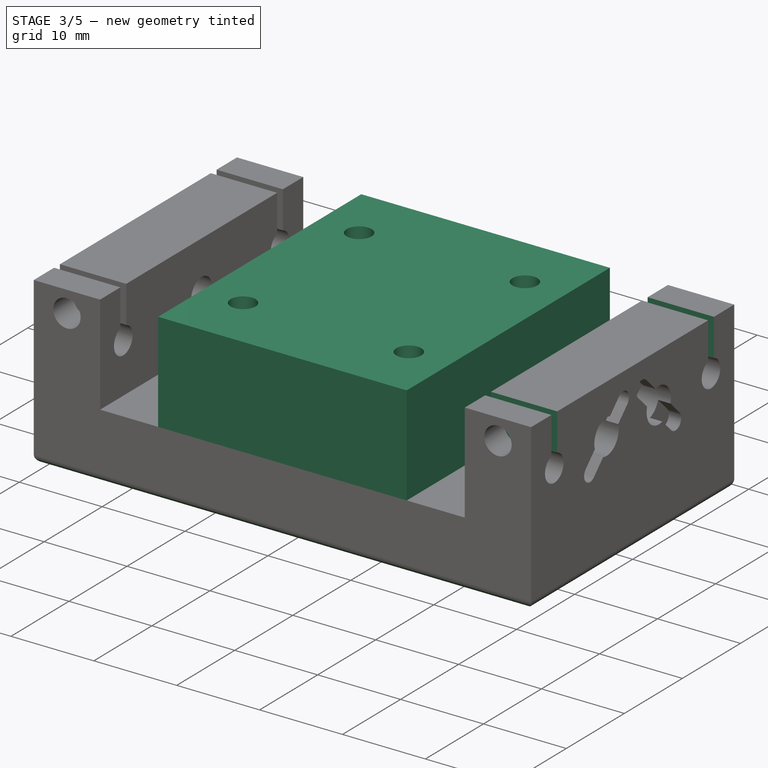
[diagram: stage 3 of 5 — iso view after this stage's code; geometry added in this stage tinted green]
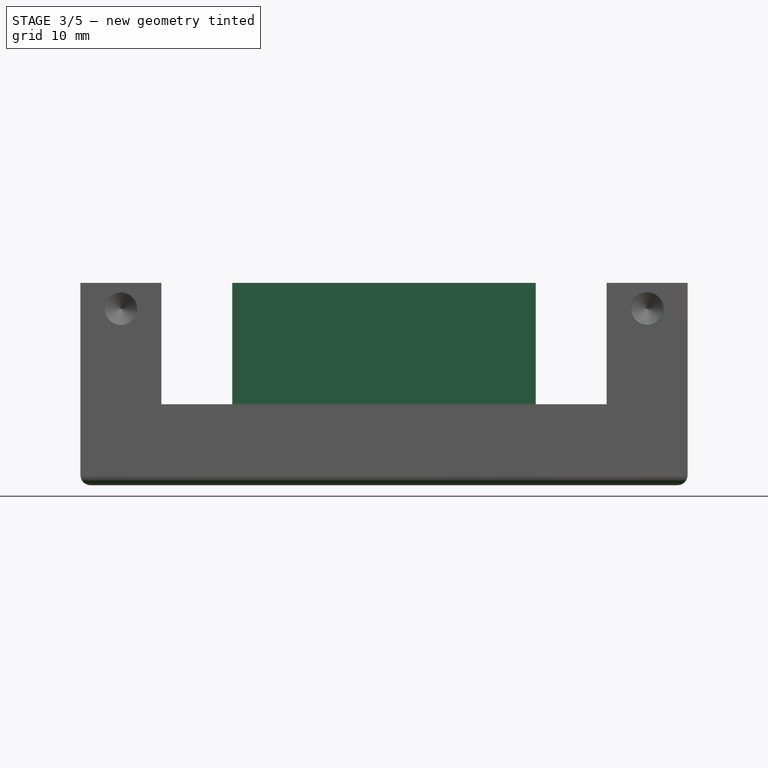
[diagram: stage 3 of 5 — front view after this stage's code; geometry added in this stage tinted green]
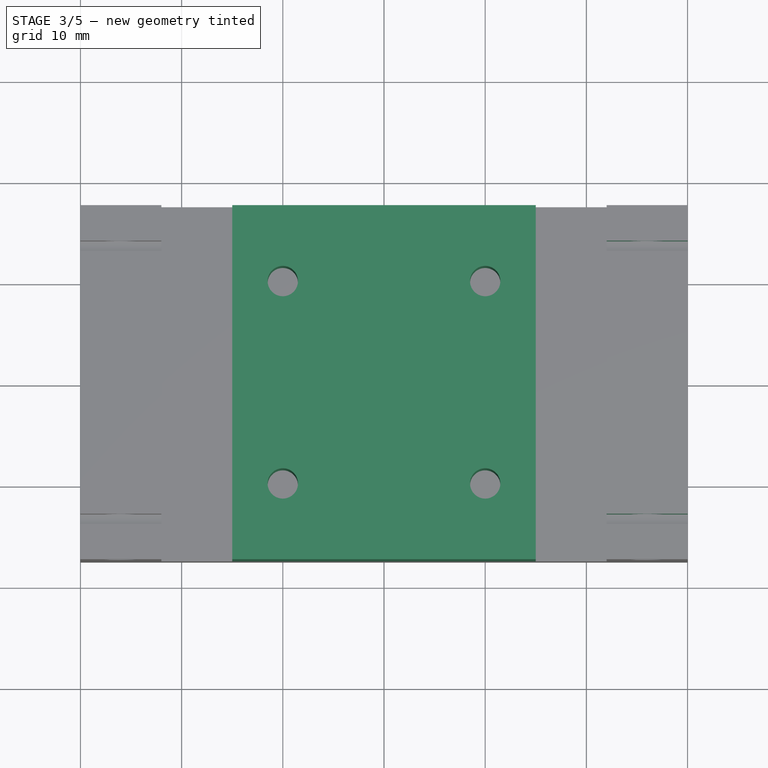
[diagram: stage 3 of 5 — top view after this stage's code; geometry added in this stage tinted green]
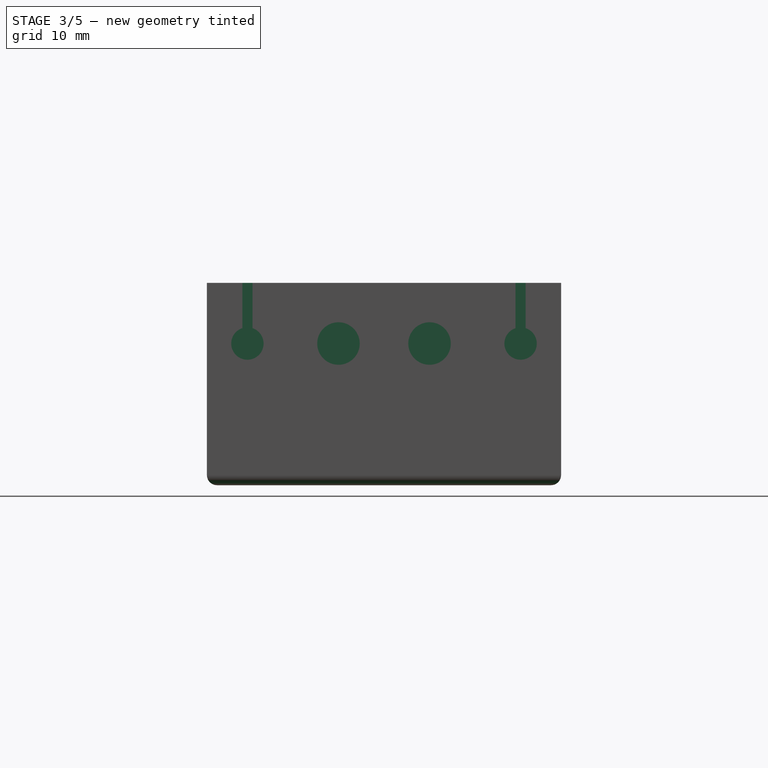
[diagram: stage 3 of 5 — right view after this stage's code; geometry added in this stage tinted green]
FEATURE [PartDesign::Plane] DatumPlane002
  AttachmentOffset = pos=(0,0,15) rot=(0,0,1;0rad)
  Length = 60
  MapMode = 5
  Placement = pos=(15,-3.3e-15,3.3e-15) rot=(0.57735,0.57735,0.57735;2.0944rad)
  ResizeMode = 0
  Support = -> [YZ_Plane001]
  Width = 60
  expr: .AttachmentOffset.Base.z = Spreadsheet.baselength / 2 - Spreadsheet.basethickness - Spreadsheet.stageposition
FEATURE [Part::Part2DObjectPython] Clone2D004  label="MasterSketchRight (2D)002"  # Draft 2D object (typed FeaturePython)
  Fuse = false
  Objects = -> [Sketch007]
  Placement = pos=(0,0,0) rot=(0.57735,0.57735,0.57735;2.0944rad)
  Scale = (1,1,1)
FEATURE [Sketcher::SketchObject] Sketch010
  ExternalGeometry = -> [Clone2D004]
  FullyConstrained = true
  MapMode = 5
  Placement = pos=(15,-3.3e-15,3.3e-15) rot=(0.57735,0.57735,0.57735;2.0944rad)
  Support = -> [DatumPlane002]
  expr: Constraints[3] = Spreadsheet.springdiameter + Spreadsheet.springclearance
  sketch-geometry (2):
    g0: Circle CenterX=-4.5 CenterY=14 CenterZ=0 NormalX=0 NormalY=0 NormalZ=1 AngleXU=0 Radius=2.1
    g1: Circle CenterX=4.5 CenterY=14 CenterZ=0 NormalX=0 NormalY=0 NormalZ=1 AngleXU=0 Radius=2.1
  constraints (4):
    c: Coincident(g0,g-3)
    c: Coincident(g1,g-4)
    c: Equal(g0,g1)
    c: Diameter(g1) = 4.2
FEATURE [Part::Part2DObjectPython] Clone2D005  label="MasterSketchFront (2D)001"  # Draft 2D object (typed FeaturePython)
  Fuse = false
  Objects = -> [Sketch006]
  Placement = pos=(0,0,0) rot=(1,0,0;1.5708rad)
  Scale = (1,1,1)
FEATURE [Sketcher::SketchObject] Sketch003
  ExternalGeometry = -> [Clone2D005]
  FullyConstrained = true
  MapMode = 5
  Placement = pos=(0,0,0) rot=(1,0,0;1.5708rad)
  Support = -> [XZ_Plane001]
  expr: Constraints[5] = Spreadsheet.stagethickness
  expr: Constraints[6] = Spreadsheet.stagelength
  expr: Constraints[7] = Spreadsheet.baseheight
  sketch-geometry (4):
    g0: LineSegment StartX=-15 StartY=8 StartZ=0 EndX=-15 EndY=20 EndZ=0
    g1: LineSegment StartX=-15 StartY=20 StartZ=0 EndX=15 EndY=20 EndZ=0
    g2: LineSegment StartX=15 StartY=20 StartZ=0 EndX=15 EndY=8 EndZ=0
    g3: LineSegment StartX=15 StartY=8 StartZ=0 EndX=-15 EndY=8 EndZ=0
  constraints (12):
    c: Vertical(g0)
    c: Coincident(g0,g1)
    c: Coincident(g1,g2)
    c: Vertical(g2)
    c: Horizontal(g3)
    c: DistanceY(g3,g0) = 12
    c: Distance(g1) = 30
    c: DistanceY(g-1,g1) = 20
    c: Coincident(g3,g0)
    c: Coincident(g3,g2)
    c: Horizontal(g1)
    c: PointOnObject(g1,g-3)
FEATURE [PartDesign::Pad] Pad001
  Direction = (0,-1,-2e-16)
  Length = 35
  Length2 = 10
  Midplane = true
  Placement = pos=(0,0,0) rot=(1,0,0;1.5708rad)
  Profile = -> Sketch003
  ReferenceAxis = -> Sketch003 [N_Axis]
  Refine = true
  Type = 0
  expr: Length = Spreadsheet.basewidth
FEATURE [Sketcher::SketchObject] Sketch005
  ExternalGeometry = -> [Clone2D005,Clone2D002]
  FullyConstrained = true
  MapMode = 5
  Placement = pos=(0,0,20) rot=(0,0,1;0rad)
  Support = -> [DatumPlane001]
  expr: Constraints[24] = Spreadsheet.stagelength
  sketch-geometry (14):
    g0: LineSegment StartX=-10 StartY=10 StartZ=0 EndX=-10 EndY=-10 EndZ=0
    g1: LineSegment StartX=-10 StartY=-10 StartZ=0 EndX=10 EndY=-10 EndZ=0
    g2: LineSegment StartX=10 StartY=-10 StartZ=0 EndX=10 EndY=10 EndZ=0
    g3: LineSegment StartX=10 StartY=10 StartZ=0 EndX=-10 EndY=10 EndZ=0
    g4: GeomPoint X=0 Y=0 Z=0
    g5: Circle CenterX=10 CenterY=10 CenterZ=0 NormalX=0 NormalY=0 NormalZ=1 AngleXU=0 Radius=1.5
    g6: Circle CenterX=-10 CenterY=10 CenterZ=0 NormalX=0 NormalY=0 NormalZ=1 AngleXU=0 Radius=1.5
    g7: Circle CenterX=-10 CenterY=-10 CenterZ=0 NormalX=0 NormalY=0 NormalZ=1 AngleXU=0 Radius=1.5
    g8: Circle CenterX=10 CenterY=-10 CenterZ=0 NormalX=0 NormalY=0 NormalZ=1 AngleXU=0 Radius=1.5
    g9: LineSegment StartX=-15 StartY=15 StartZ=0 EndX=15 EndY=15 EndZ=0
    g10: LineSegment StartX=-15 StartY=-15 StartZ=0 EndX=15 EndY=-15 EndZ=0
    g11: LineSegment StartX=-15 StartY=15 StartZ=0 EndX=15 EndY=-15 EndZ=0
    g12: LineSegment StartX=15 StartY=15 StartZ=0 EndX=-15 EndY=-15 EndZ=0
    g13: Circle CenterX=3.7e-15 CenterY=-1e-16 CenterZ=0 NormalX=0 NormalY=0 NormalZ=1 AngleXU=0 Radius=1.5
  constraints (35):
    c: Coincident(g0,g1)
    c: Coincident(g1,g2)
    c: Coincident(g2,g3)
    c: Coincident(g3,g0)
    c: Horizontal(g1)
    c: Horizontal(g3)
    c: Vertical(g0)
    c: Vertical(g2)
    c: Coincident(g4,g-1)
    c: Distance(g3) = 20
    c: Coincident(g5,g2)
    c: Coincident(g6,g0)
    c: Coincident(g7,g0)
    c: Coincident(g8,g1)
    c: Equal(g6,g5)
    c: Equal(g5,g7)
    c: Equal(g7,g8)
    c: Diameter(g5) = 3
    c: DistanceY(g0,g0) = 20
    c: PointOnObject(g9,g-5)
    c: PointOnObject(g9,g-4)
    c: Horizontal(g9)
    c: PointOnObject(g10,g-5)
    c: Horizontal(g10)
    c: DistanceY(g10,g9) = 30
    c: Symmetric(g9,g10,g-1)
    c: Coincident(g11,g9)
    c: Coincident(g11,g10)
    c: Coincident(g12,g9)
    c: Coincident(g12,g10)
    c: PointOnObject(g5,g12)
    c: PointOnObject(g8,g11)
    c: PointOnObject(g13,g12)
    c: PointOnObject(g13,g11)
    c: Equal(g13,g5)
FEATURE [PartDesign::Pocket] Pocket001
  BaseFeature = -> Pad001
  Direction = (0,0,-1)
  Length = 10
  Length2 = 5
  Placement = pos=(0,0,0) rot=(1,0,0;1.5708rad)
  Profile = -> Sketch005
  ReferenceAxis = -> Sketch005 [N_Axis]
  Refine = true
  Type = 1
FEATURE [PartDesign::Pocket] Pocket010
  BaseFeature = -> Pocket009
  Direction = (-1,1e-16,-1e-16)
  Length = 10
  Length2 = 5
  Placement = pos=(0,0,0) rot=(1,0,0;1.5708rad)
  Profile = -> Sketch019
  ReferenceAxis = -> Sketch019 [N_Axis]
  Refine = true
  Type = 0
FEATURE [PartDesign::Fillet] Fillet
  Base = -> Pocket010 [Edge17,Edge2,Edge26,Edge25]
  BaseFeature = -> Pocket010
  Placement = pos=(0,0,0) rot=(1,0,0;1.5708rad)
  Radius = 1
  Refine = true
  SupportTransform = false
  UseAllEdges = false
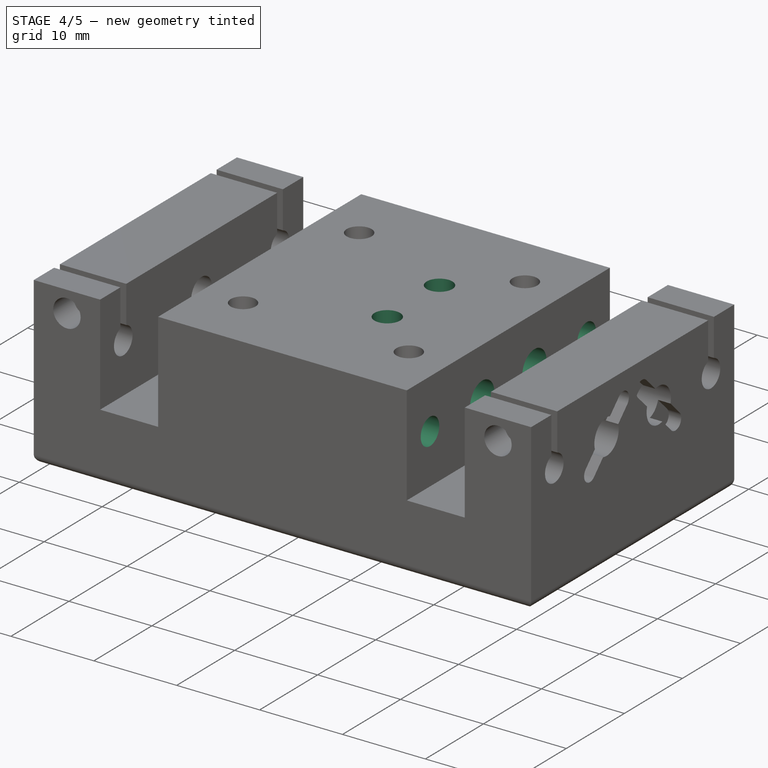
[diagram: stage 4 of 5 — iso view after this stage's code; geometry added in this stage tinted green]
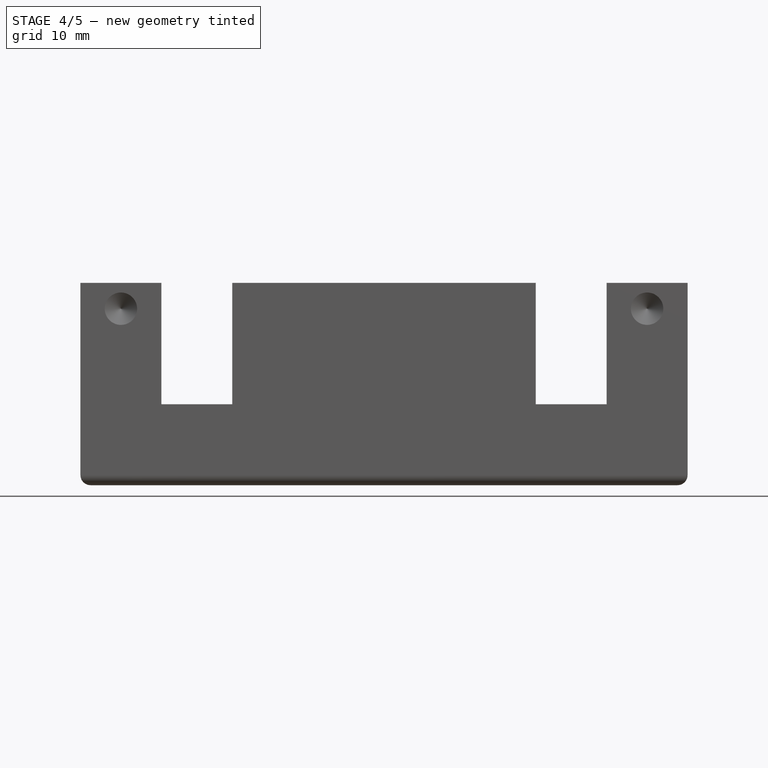
[diagram: stage 4 of 5 — front view after this stage's code; geometry added in this stage tinted green]
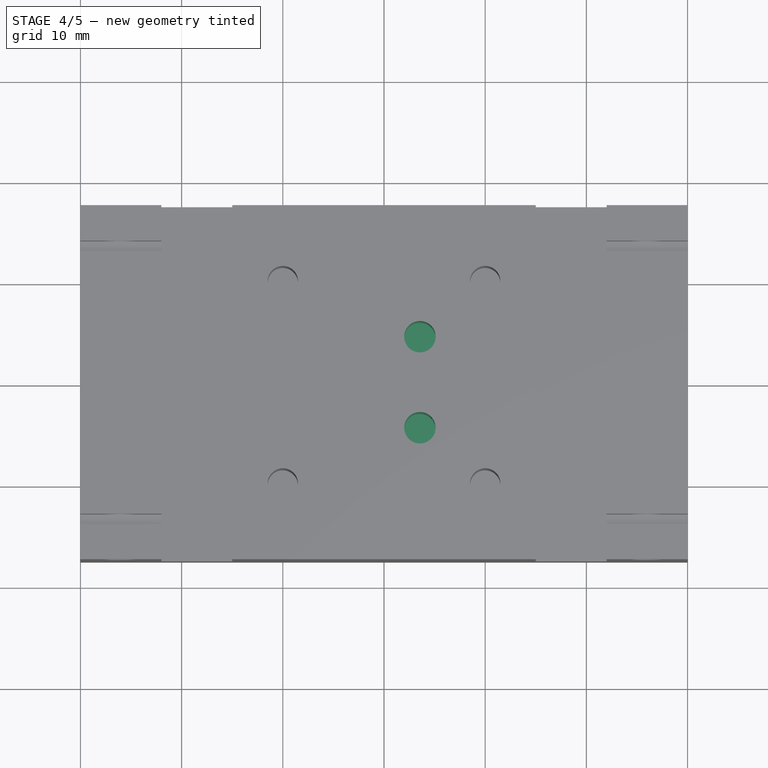
[diagram: stage 4 of 5 — top view after this stage's code; geometry added in this stage tinted green]
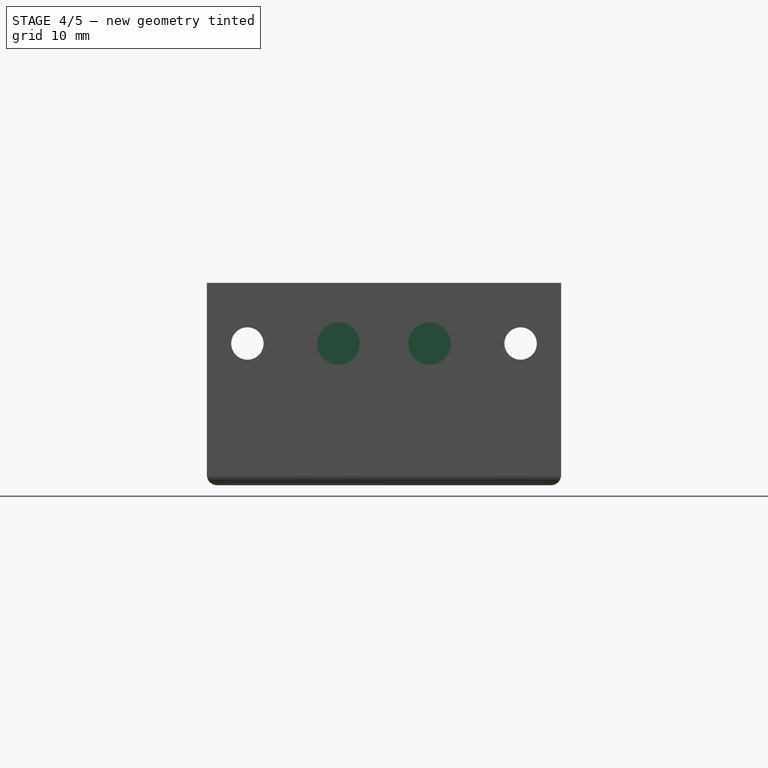
[diagram: stage 4 of 5 — right view after this stage's code; geometry added in this stage tinted green]
FEATURE [PartDesign::Pocket] Pocket003  label="SpringPocket001"
  BaseFeature = -> Pocket001
  Direction = (-1,1e-16,-1e-16)
  Length = 14
  Length2 = 5
  Placement = pos=(0,0,0) rot=(1,0,0;1.5708rad)
  Profile = -> Sketch010
  ReferenceAxis = -> Sketch010 [N_Axis]
  Refine = true
  Type = 0
FEATURE [Sketcher::SketchObject] Sketch011
  ExternalGeometry = -> [Clone2D004]
  FullyConstrained = true
  MapMode = 5
  Placement = pos=(15,-3.3e-15,3.3e-15) rot=(0.57735,0.57735,0.57735;2.0944rad)
  Support = -> [DatumPlane002]
  expr: Constraints[3] = Spreadsheet.roddiameter + Spreadsheet.rodclearance
  sketch-geometry (2):
    g0: Circle CenterX=-13.5 CenterY=14 CenterZ=0 NormalX=0 NormalY=0 NormalZ=1 AngleXU=0 Radius=1.6
    g1: Circle CenterX=13.5 CenterY=14 CenterZ=0 NormalX=0 NormalY=0 NormalZ=1 AngleXU=0 Radius=1.6
  constraints (4):
    c: Coincident(g0,g-3)
    c: Coincident(g1,g-4)
    c: Equal(g0,g1)
    c: Diameter(g1) = 3.2
FEATURE [PartDesign::Pocket] Pocket004  label="RodPocket"
  BaseFeature = -> Pocket003
  Direction = (-1,1e-16,-1e-16)
  Length = 5
  Length2 = 5
  Placement = pos=(0,0,0) rot=(1,0,0;1.5708rad)
  Profile = -> Sketch011
  ReferenceAxis = -> Sketch011 [N_Axis]
  Refine = true
  Type = 1
FEATURE [Sketcher::SketchObject] Sketch012
  ExternalGeometry = -> [Clone2D005,Clone2D004]
  FullyConstrained = false
  MapMode = 5
  Placement = pos=(0,0,20) rot=(0,0,1;0rad)
  Support = -> [DatumPlane001]
  sketch-geometry (5):
    g0: LineSegment StartX=2 StartY=27.0172 StartZ=0 EndX=2 EndY=-27.0068 EndZ=0
    g1: LineSegment StartX=-3.60248 StartY=4.5 StartZ=0 EndX=12.7351 EndY=4.5 EndZ=0
    g2: LineSegment StartX=-3.60248 StartY=-4.5 StartZ=0 EndX=12.7351 EndY=-4.5 EndZ=0
    g3: Circle CenterX=3.55 CenterY=4.5 CenterZ=0 NormalX=0 NormalY=0 NormalZ=1 AngleXU=0 Radius=1.55
    g4: Circle CenterX=3.55 CenterY=-4.5 CenterZ=0 NormalX=0 NormalY=0 NormalZ=1 AngleXU=0 Radius=1.55
  constraints (12):
    c: Vertical(g0)
    c: PointOnObject(g-3,g0)
    c: Equal(g1,g2)
    c: Symmetric(g-5,g-5,g1)
    c: Symmetric(g-4,g-4,g2)
    c: Vertical(g1,g2)
    c: PointOnObject(g3,g1)
    c: PointOnObject(g4,g2)
    c: Equal(g3,g4)
    c: Vertical(g3,g4)
    c: Diameter(g3) = 3.1
    c: Tangent(g3,g0)
FEATURE [PartDesign::Pocket] Pocket005
  BaseFeature = -> Pocket004
  Direction = (0,0,-1)
  Length = 10
  Length2 = 5
  Placement = pos=(0,0,0) rot=(1,0,0;1.5708rad)
  Profile = -> Sketch012
  ReferenceAxis = -> Sketch012 [N_Axis]
  Refine = true
  Type = 0
FEATURE [PartDesign::Plane] DatumPlane004
  AttachmentOffset = pos=(0,0,15) rot=(0,0,1;0rad)
  Length = 60
  MapMode = 5
  Placement = pos=(-15,3.3e-15,-3.3e-15) rot=(-0.57735,0.57735,0.57735;4.18879rad)
  ResizeMode = 0
  Support = -> [YZ_Plane001]
  Width = 60
  expr: .AttachmentOffset.Base.z = Spreadsheet.baselength / 2 - Spreadsheet.basethickness - Spreadsheet.stageposition
FEATURE [Sketcher::SketchObject] Sketch015
  AttachmentOffset = pos=(0,0,-7) rot=(0,0,1;0rad)
  ExternalGeometry = -> [Clone2D005]
  FullyConstrained = true
  MapMode = 5
  Placement = pos=(-8,2e-16,-1.8e-15) rot=(-0.57735,0.57735,0.57735;4.18879rad)
  Support = -> [DatumPlane004]
  sketch-geometry (1):
    g0: Circle CenterX=2.9e-15 CenterY=14 CenterZ=0 NormalX=0 NormalY=0 NormalZ=1 AngleXU=0 Radius=1.6
  constraints (2):
    c: Symmetric(g-4,g-3,g0)
    c: Diameter(g0) = 3.2
FEATURE [PartDesign::Plane] DatumPlane005
  AttachmentOffset = pos=(0,0,-8) rot=(0,0,1;0rad)
  Length = 60
  MapMode = 5
  Placement = pos=(0,0,8) rot=(0,1,0;3.14159rad)
  ResizeMode = 0
  Support = -> [XY_Plane001]
  Width = 60
  expr: .AttachmentOffset.Base.z = -Spreadsheet.basethickness
FEATURE [Sketcher::SketchObject] Sketch016
  ExternalGeometry = -> [Clone2D002]
  FullyConstrained = false
  MapMode = 5
  Placement = pos=(0,0,8) rot=(0,1,0;3.14159rad)
  Support = -> [DatumPlane005]
  sketch-geometry (5):
    g0: LineSegment StartX=0 StartY=5.59965 StartZ=0 EndX=0 EndY=-5.59965 EndZ=0
    g1: LineSegment StartX=0 StartY=-5.59965 StartZ=0 EndX=8 EndY=-5.59965 EndZ=0
    g2: LineSegment StartX=8 StartY=-5.59965 StartZ=0 EndX=8 EndY=5.59965 EndZ=0
    g3: LineSegment StartX=8 StartY=5.59965 StartZ=0 EndX=0 EndY=5.59965 EndZ=0
    g4: GeomPoint X=4 Y=0 Z=0
  constraints (12):
    c: Coincident(g0,g1)
    c: Coincident(g1,g2)
    c: Coincident(g2,g3)
    c: Coincident(g3,g0)
    c: Horizontal(g1)
    c: Horizontal(g3)
    c: Vertical(g0)
    c: Vertical(g2)
    c: Symmetric(g1,g0,g4)
    c: PointOnObject(g4,g-1)
    c: DistanceX(g2,g-3) = 7
    c: PointOnObject(g0,g-2)
FEATURE [PartDesign::Pocket] Pocket008
  BaseFeature = -> Pocket005
  Direction = (0,0,1)
  Length = 9
  Length2 = 5
  Placement = pos=(0,0,0) rot=(1,0,0;1.5708rad)
  Profile = -> Sketch016
  ReferenceAxis = -> Sketch016 [N_Axis]
  Refine = true
  Type = 0
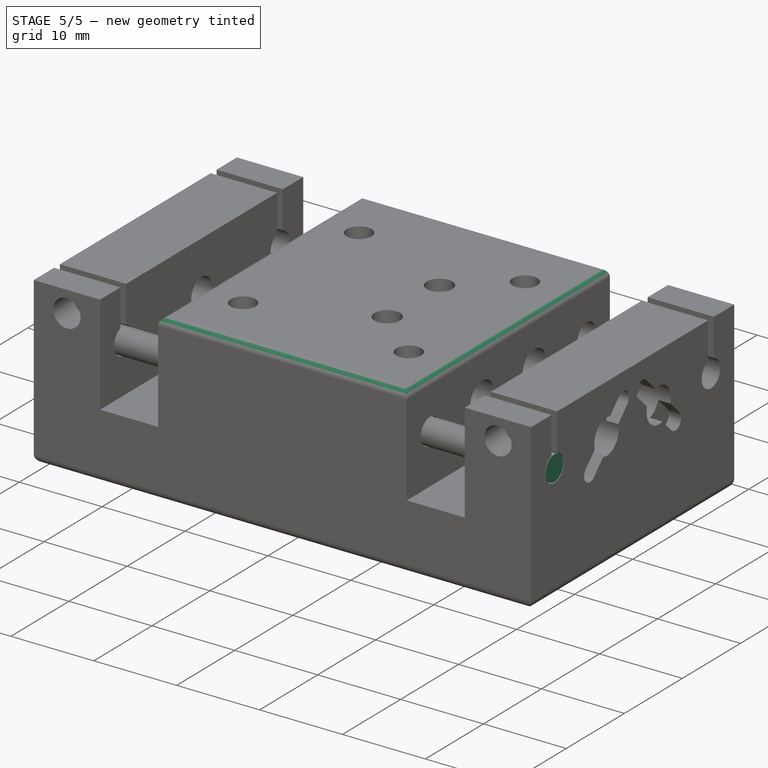
[diagram: stage 5 of 5 — iso view after this stage's code; geometry added in this stage tinted green]
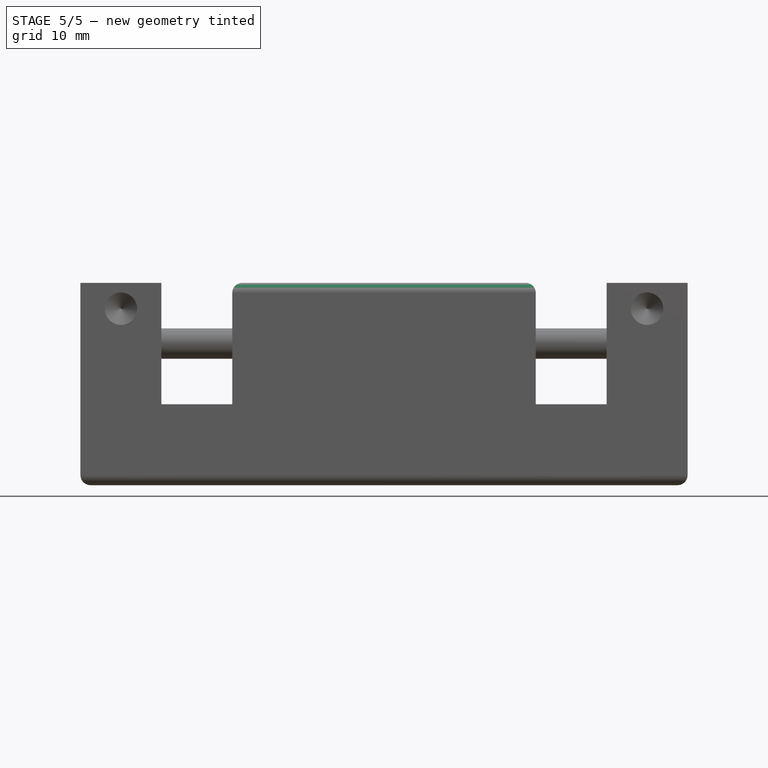
[diagram: stage 5 of 5 — front view after this stage's code; geometry added in this stage tinted green]
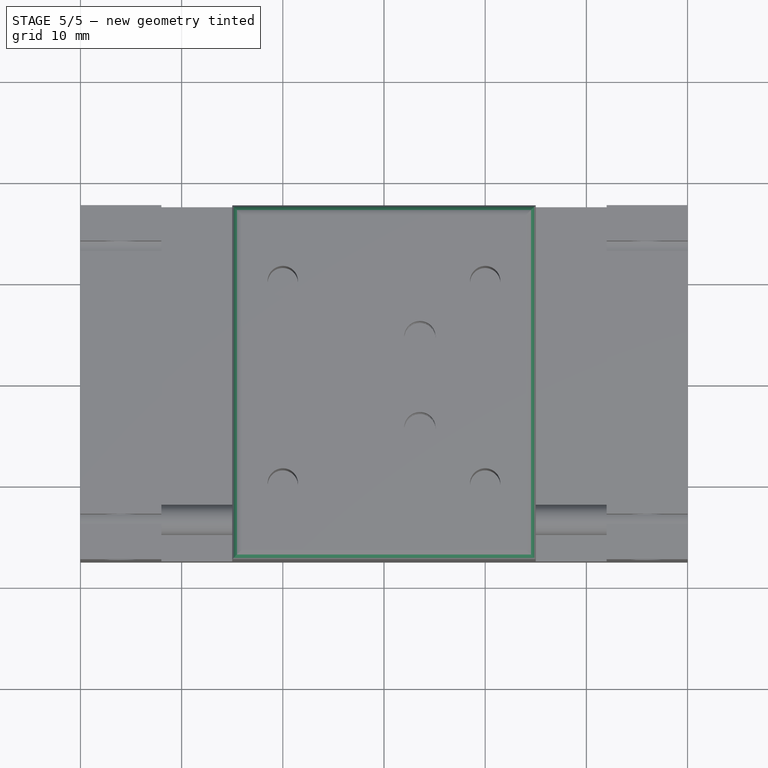
[diagram: stage 5 of 5 — top view after this stage's code; geometry added in this stage tinted green]
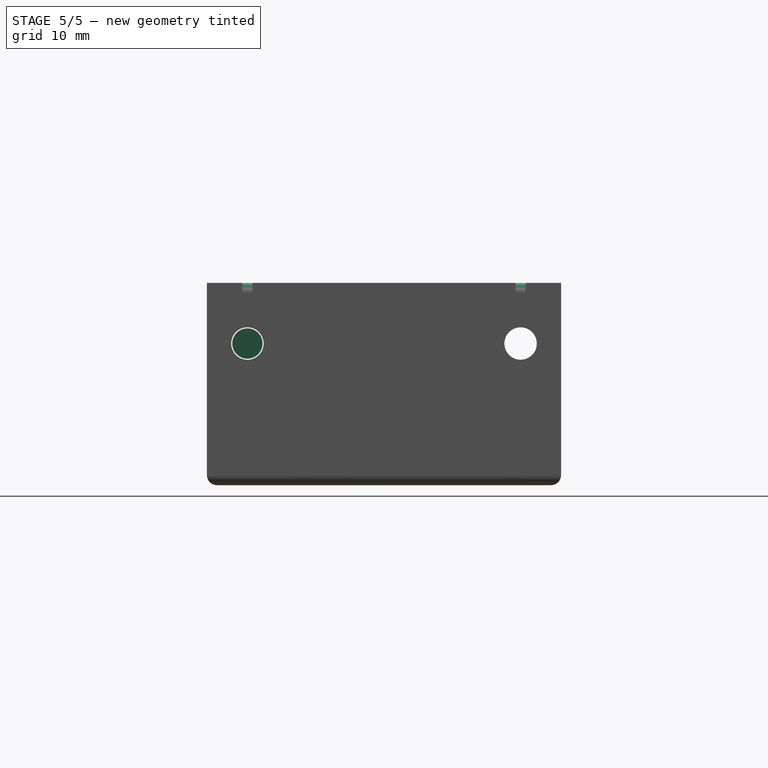
[diagram: stage 5 of 5 — right view after this stage's code; geometry added in this stage tinted green]
FEATURE [Part::Part2DObjectPython] Clone2D002  label="MasterSketchTop (2D)"  # Draft 2D object (typed FeaturePython)
  Fuse = false
  Objects = -> [Sketch008]
  Scale = (1,1,1)
FEATURE [Part::Part2DObjectPython] Clone2D003  label="MasterSketchRight (2D)001"  # Draft 2D object (typed FeaturePython)
  Fuse = false
  Objects = -> [Sketch007]
  Placement = pos=(0,0,0) rot=(0.57735,0.57735,0.57735;2.0944rad)
  Scale = (1,1,1)
FEATURE [Sketcher::SketchObject] Sketch004
  ExternalGeometry = -> [Clone2D003]
  FullyConstrained = true
  MapMode = 5
  Placement = pos=(0,0,0) rot=(0.57735,0.57735,0.57735;2.0944rad)
  Support = -> [YZ_Plane002]
  expr: Constraints[0] = Spreadsheet.roddiameter
  sketch-geometry (1):
    g0: Circle CenterX=13.5 CenterY=14 CenterZ=0 NormalX=0 NormalY=0 NormalZ=1 AngleXU=0 Radius=1.5
  constraints (2):
    c: Diameter(g0) = 3
    c: Coincident(g0,g-3)
FEATURE [PartDesign::Pad] Pad002
  Direction = (1,-2e-16,3e-16)
  Length = 60
  Length2 = 10
  Midplane = true
  Placement = pos=(0,0,0) rot=(0.57735,0.57735,0.57735;2.0944rad)
  Profile = -> Sketch004
  ReferenceAxis = -> Sketch004 [N_Axis]
  Refine = true
  Type = 0
  expr: Length = Spreadsheet.baselength
FEATURE [PartDesign::Body] Body002  label="Rod1Body"
  Group = -> [Sketch004,Pad002,Clone2D003]
  Origin = -> Origin002
  Tip = -> Pad002
FEATURE [PartDesign::FeatureBase] Clone
  BaseFeature = -> Body002
  Placement = pos=(0,-27,0) rot=(0,0,1;0rad)
  expr: .Placement.Base.y = -Spreadsheet.basewidth + Spreadsheet.basethickness
FEATURE [PartDesign::Hole] Hole003
  BaseFeature = -> Pocket008
  CustomThreadClearance = 0
  Depth = 25
  DepthType = 0
  Diameter = 3.6
  DrillForDepth = false
  DrillPoint = 1
  DrillPointAngle = 118
  HoleCutCountersinkAngle = 90
  HoleCutCustomValues = false
  HoleCutDepth = 5
  HoleCutDiameter = 4.6
  HoleCutType = 1
  ModelThread = false
  Placement = pos=(0,0,0) rot=(1,0,0;1.5708rad)
  Profile = -> Sketch015
  Refine = true
  Reversed = true
  Tapered = false
  TaperedAngle = 90
  ThreadClass = 0
  ThreadDepth = 25
  ThreadDepthType = 0
  ThreadDirection = 0
  ThreadFit = 2
  ThreadSize = 9
  ThreadType = 1
  Threaded = false
  UseCustomThreadClearance = false
  expr: HoleCutDepth = 5mm
  expr: HoleCutDiameter = 4.6mm
FEATURE [PartDesign::Body] Body  label="BaseBody"
  Group = -> [Sketch,Pad,Sketch001,Pocket,Clone2D,Clone2D001,DatumPlane,Sketch009,Pocket002,Sketch013,Pocket006,DatumPlane003,Sketch014,Hole,Clone2D007,Sketch018,Sketch019,DatumPlane006,Sketch020,Hole001,DatumPlane007,Sketch021,Hole002,Pocket009,Pocket010,Fillet]
  Origin = -> Origin
  Tip = -> Fillet
FEATURE [PartDesign::Fillet] Fillet001
  Base = -> Hole003 [Edge19,Edge4,Edge21,Edge23]
  BaseFeature = -> Hole003
  Placement = pos=(0,0,0) rot=(1,0,0;1.5708rad)
  Radius = 1
  Refine = true
  SupportTransform = false
  UseAllEdges = false
FEATURE [PartDesign::Body] Body001  label="StageBody"
  Group = -> [DatumPlane001,Sketch003,Pad001,Sketch005,Pocket001,DatumPlane002,Clone2D004,Sketch010,Pocket003,Clone2D002,Clone2D005,Sketch011,Pocket004,Sketch012,Pocket005,DatumPlane004,Sketch015,DatumPlane005,Sketch016,Pocket008,Hole003,Fillet001]
  Origin = -> Origin001
  Tip = -> Fillet001
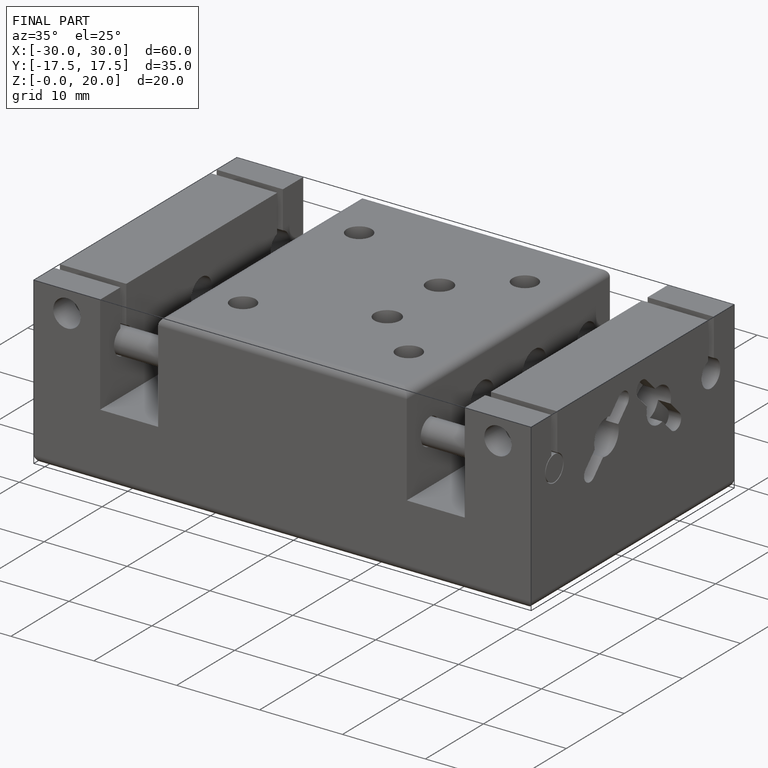
[diagram: finished part — iso view with bounding-box wireframe]
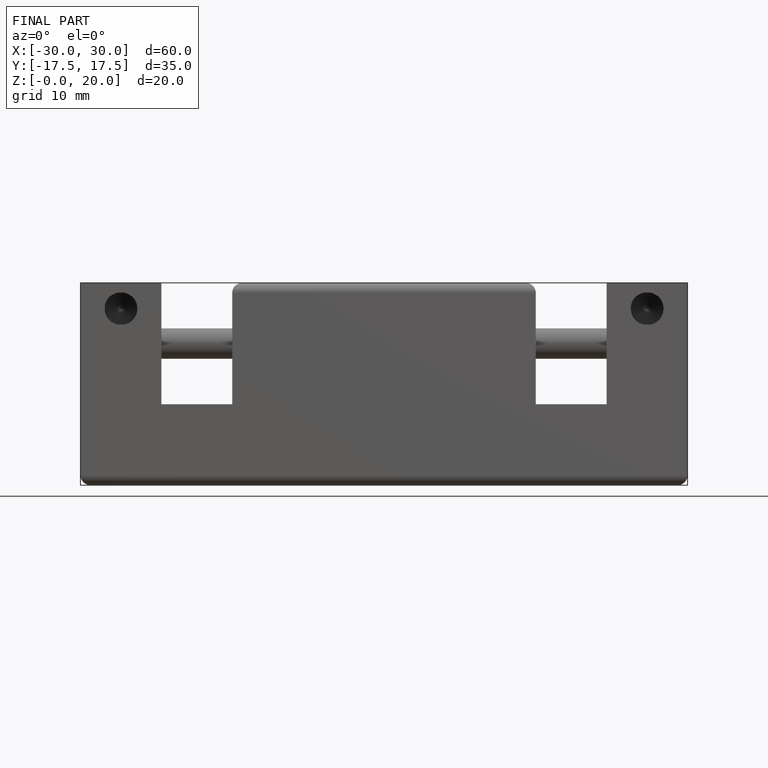
[diagram: finished part — front view with bounding-box wireframe]
